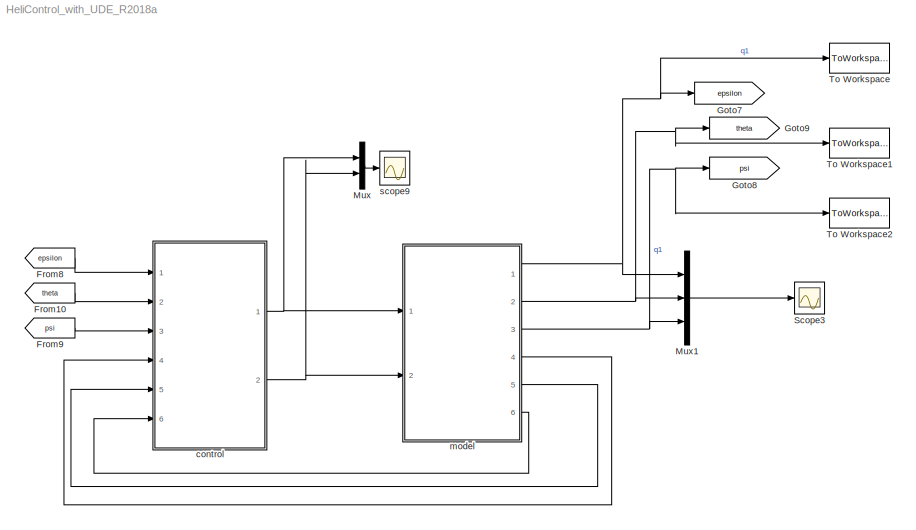
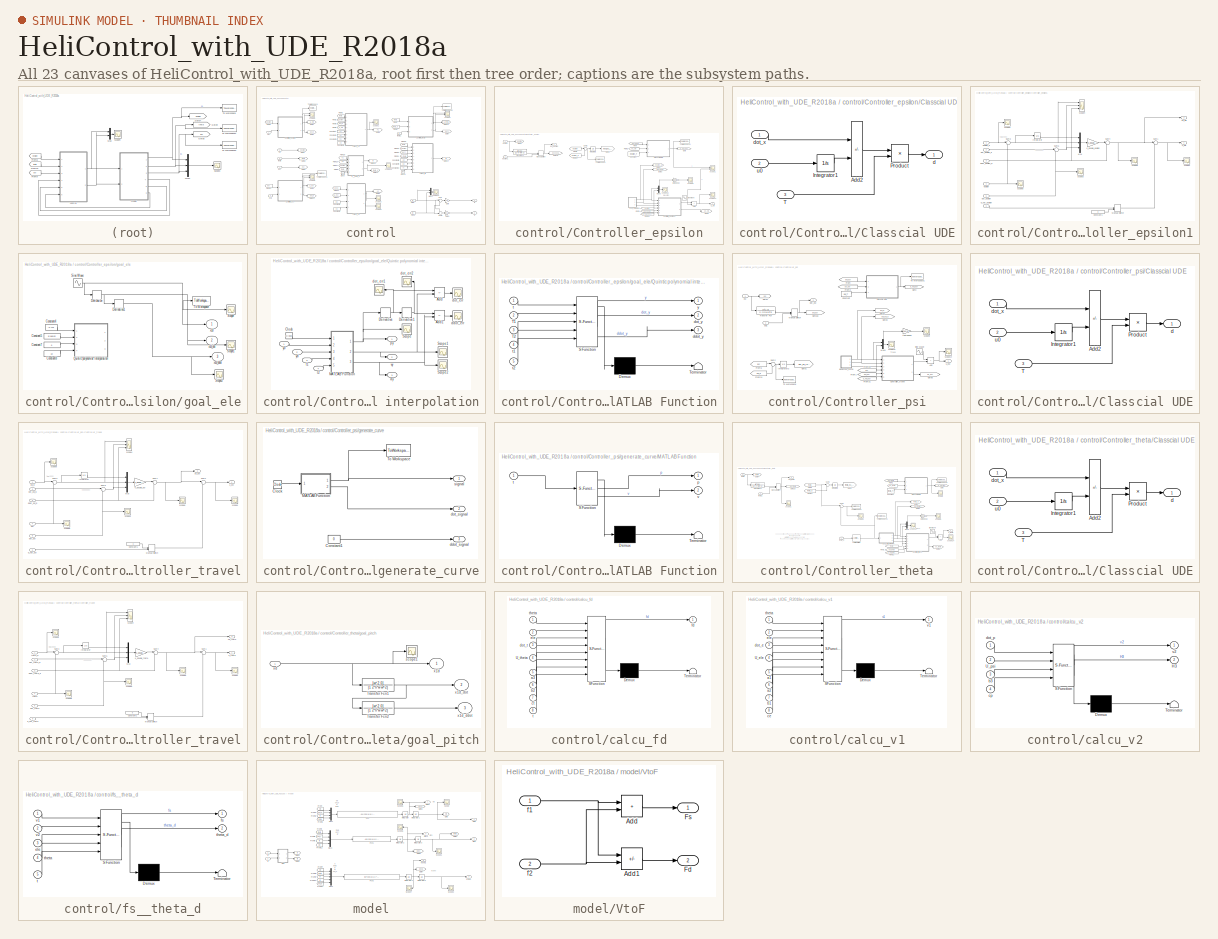
[diagram: thumbnail index - all 23 canvases of the model, root first then tree order]
MODEL HeliControl_with_UDE_R2018a
KIND model
CONFIG StopFcn = %save('data.mat','ans_eps','ans_eps_d','ans_psi','ans_psi_d','ans_theta','ans_theta_d','u_ele','u_psi','u_theta','dhat_ele','dhat_psi','dhat_theta')
BLOCK [From] From10
  GotoTag = theta
  SID = 1190
BLOCK [From] From8
  GotoTag = epsilon
  SID = 1191
BLOCK [From] From9
  GotoTag = psi
  SID = 1192
BLOCK [Goto] Goto7
  GotoTag = epsilon
  SID = 1193
BLOCK [Goto] Goto8
  GotoTag = psi
  SID = 1194
BLOCK [Goto] Goto9
  GotoTag = theta
  SID = 1195
BLOCK [Mux] Mux
  DisplayOption = bar
  Inputs = 2
  Ports = [2, 1]
  SID = 1196
BLOCK [Mux] Mux1
  DisplayOption = bar
  Inputs = 3
  Ports = [3, 1]
  SID = 1467
BLOCK [Scope] Scope3
  Floating = off
  NumInputPorts = 1
  Ports = [1]
  SID = 1200
  ScopeSpecificationString = Simulink.scopes.TimeScopeBlockCfg('CurrentConfiguration', extmgr.ConfigurationSet(extmgr.Configuration('Core','General UI',true),extmgr.Configuration('Core','Source UI',true),extmgr.Configuration('Sources','WiredSimulink',true,'DataLoggingVariableName','q','DataLoggingSaveFormat','Array','DataLoggingDecimation','1','DataLoggingDecimateData',true,'DataLogging',true),extmgr.Configuration('Visuals','...<+1801ch>
BLOCK [ToWorkspace] To Workspace
  FixptAsFi = on
  MaxDataPoints = inf
  Ports = [1]
  SID = 2101
  SampleTime = -1
  Save2DSignal = 2-D array (concatenate along first dimension)
  SaveFormat = Structure With Time
  VariableName = ans_eps
BLOCK [ToWorkspace] To Workspace1
  FixptAsFi = on
  MaxDataPoints = inf
  Ports = [1]
  SID = 2102
  SampleTime = -1
  Save2DSignal = 2-D array (concatenate along first dimension)
  VariableName = ans_theta
BLOCK [ToWorkspace] To Workspace2
  FixptAsFi = on
  MaxDataPoints = inf
  Ports = [1]
  SID = 2103
  SampleTime = -1
  Save2DSignal = 2-D array (concatenate along first dimension)
  VariableName = ans_psi
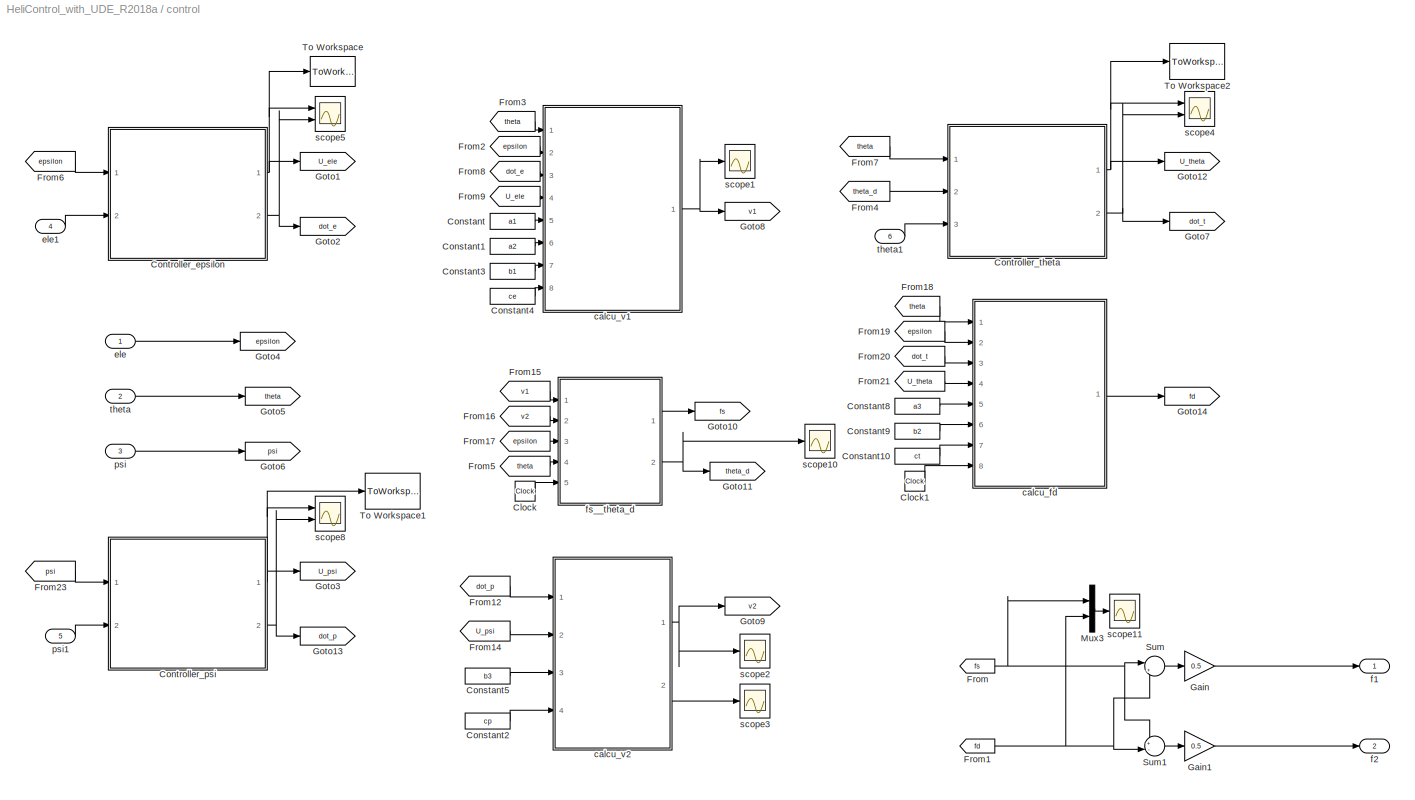
BLOCK [SubSystem] control
  Ports = [6, 2]
  RequestExecContextInheritance = off
  SID = 1204
BLOCK [Clock] control/Clock
  Decimation = 30
  SID = 1208
BLOCK [Clock] control/Clock1
  Decimation = 30
  SID = 1209
BLOCK [Constant] control/Constant
  SID = 1210
  Value = a1
BLOCK [Constant] control/Constant1
  SID = 1211
  Value = a2
BLOCK [Constant] control/Constant10
  SID = 1212
  Value = ct
BLOCK [Constant] control/Constant2
  SID = 2111
  Value = cp
BLOCK [Constant] control/Constant3
  SID = 1213
  Value = b1
BLOCK [Constant] control/Constant4
  SID = 1214
  Value = ce
BLOCK [Constant] control/Constant5
  SID = 1215
  Value = b3
BLOCK [Constant] control/Constant8
  SID = 1218
  Value = a3
BLOCK [Constant] control/Constant9
  SID = 1219
  Value = b2
BLOCK [SubSystem] control/Controller_epsilon
  Ports = [2, 2]
  RequestExecContextInheritance = off
  SID = 1571
BLOCK [Sum] control/Controller_epsilon/Add
  IconShape = rectangular
  Ports = [2, 1]
  SID = 2218
BLOCK [SubSystem] control/Controller_epsilon/Classcial UDE
  Ports = [3, 1]
  RequestExecContextInheritance = off
  SID = 2115
BLOCK [Sum] control/Controller_epsilon/Classcial UDE/Add2
  IconShape = rectangular
  Inputs = +-
  Ports = [2, 1]
  SID = 2119
BLOCK [Integrator] control/Controller_epsilon/Classcial UDE/Integrator1
  Ports = [1, 1]
  SID = 2121
BLOCK [Product] control/Controller_epsilon/Classcial UDE/Product
  Inputs = */
  Ports = [2, 1]
  SID = 2122
BLOCK [Inport] control/Controller_epsilon/Classcial UDE/T
  Port = 3
  SID = 2118
BLOCK [Outport] control/Controller_epsilon/Classcial UDE/d
  SID = 2123
  VectorParamsAs1DForOutWhenUnconnected = off
BLOCK [Inport] control/Controller_epsilon/Classcial UDE/dot_x
  SID = 2116
BLOCK [Inport] control/Controller_epsilon/Classcial UDE/u0
  Port = 2
  SID = 2117
BLOCK [Constant] control/Controller_epsilon/Constant
  SID = 2136
  SampleTime = -1
  Value = epsilon_T
  VectorParams1D = off
BLOCK [SubSystem] control/Controller_epsilon/Controller_epsilon1
  Ports = [6, 2]
  RequestExecContextInheritance = off
  SID = 1220
BLOCK [Constant] control/Controller_epsilon/Controller_epsilon1/Constant1
  SID = 2052
  Value = 0
BLOCK [Integrator] control/Controller_epsilon/Controller_epsilon1/Integrator
  Ports = [1, 1]
  SID = 1497
BLOCK [ManualSwitch] control/Controller_epsilon/Controller_epsilon1/Manual Switch
  SID = 2051
BLOCK [Mux] control/Controller_epsilon/Controller_epsilon1/Mux
  DisplayOption = bar
  Inputs = 3
  Ports = [3, 1]
  SID = 1227
BLOCK [Sum] control/Controller_epsilon/Controller_epsilon1/Sum1
  Inputs = |+-
  Ports = [2, 1]
  SID = 1580
BLOCK [Sum] control/Controller_epsilon/Controller_epsilon1/Sum3
  Inputs = |+-
  Ports = [2, 1]
  SID = 1228
BLOCK [Sum] control/Controller_epsilon/Controller_epsilon1/Sum4
  Inputs = |++
  Ports = [2, 1]
  SID = 1229
BLOCK [Sum] control/Controller_epsilon/Controller_epsilon1/Sum6
  Inputs = |+-
  Ports = [2, 1]
  SID = 1230
BLOCK [Inport] control/Controller_epsilon/Controller_epsilon1/d_hat_epsilon
  Port = 6
  SID = 1569
BLOCK [Inport] control/Controller_epsilon/Controller_epsilon1/ddot_epsilon_d
  Port = 3
  SID = 1223
BLOCK [Inport] control/Controller_epsilon/Controller_epsilon1/dot_epsilon
  Port = 5
  SID = 1579
BLOCK [Inport] control/Controller_epsilon/Controller_epsilon1/dot_epsilon_d
  Port = 2
  SID = 1222
BLOCK [Inport] control/Controller_epsilon/Controller_epsilon1/epsilon
  Port = 4
  SID = 1224
BLOCK [Inport] control/Controller_epsilon/Controller_epsilon1/epsilon_d
  SID = 1221
BLOCK [Gain] control/Controller_epsilon/Controller_epsilon1/k_double_epsilon
  Gain = k_double_epsilon
  Multiplication = Matrix(K*u)
  SID = 1232
BLOCK [Scope] control/Controller_epsilon/Controller_epsilon1/scope1
  Floating = off
  NumInputPorts = 1
  Ports = [1]
  SID = 1581
  ScopeSpecificationString = Simulink.scopes.TimeScopeBlockCfg('CurrentConfiguration', extmgr.ConfigurationSet(extmgr.Configuration('Core','General UI',true,'FigureColor',[1 1 1]),extmgr.Configuration('Core','Source UI',true),extmgr.Configuration('Sources','WiredSimulink',true,'DataLoggingVariableName','non2','DataLoggingSaveFormat','StructureWithTime','DataLoggingDecimation','1','DataLoggingDecimateData',true),extmgr.Configu...<+2930ch>
BLOCK [Scope] control/Controller_epsilon/Controller_epsilon1/scope3
  Floating = off
  NumInputPorts = 1
  Ports = [1]
  SID = 1233
  ScopeSpecificationString = Simulink.scopes.TimeScopeBlockCfg('CurrentConfiguration', extmgr.ConfigurationSet(extmgr.Configuration('Core','General UI',true),extmgr.Configuration('Core','Source UI',true),extmgr.Configuration('Sources','WiredSimulink',true,'DataLoggingVariableName','ScopeData4','DataLoggingSaveFormat','StructureWithTime','DataLoggingDecimation','1','DataLoggingDecimateData',true),extmgr.Configuration('Visuals'...<+1603ch>
BLOCK [Scope] control/Controller_epsilon/Controller_epsilon1/scope4
  Floating = off
  NumInputPorts = 3
  Ports = [3]
  SID = 1234
  ScopeSpecificationString = Simulink.scopes.TimeScopeBlockCfg('CurrentConfiguration', extmgr.ConfigurationSet(extmgr.Configuration('Core','General UI',true),extmgr.Configuration('Core','Source UI',true),extmgr.Configuration('Sources','WiredSimulink',true,'DataLoggingVariableName','ScopeData5','DataLoggingSaveFormat','StructureWithTime','DataLoggingDecimation','1','DataLoggingDecimateData',true),extmgr.Configuration('Visuals'...<+3022ch>
BLOCK [Scope] control/Controller_epsilon/Controller_epsilon1/scope6
  Floating = off
  NumInputPorts = 1
  Ports = [1]
  SID = 1235
  ScopeSpecificationString = Simulink.scopes.TimeScopeBlockCfg('CurrentConfiguration', extmgr.ConfigurationSet(extmgr.Configuration('Core','General UI',true,'FigureColor',[1 1 1]),extmgr.Configuration('Core','Source UI',true),extmgr.Configuration('Sources','WiredSimulink',true,'DataLoggingVariableName','non','DataLoggingSaveFormat','StructureWithTime','DataLoggingDecimation','1','DataLoggingDecimateData',true),extmgr.Configur...<+2562ch>  <repeated x3 — deduplicated; at blocks: scope6>
BLOCK [Scope] control/Controller_epsilon/Controller_epsilon1/scope8
  Floating = off
  NumInputPorts = 1
  Ports = [1]
  SID = 1236
  ScopeSpecificationString = Simulink.scopes.TimeScopeBlockCfg('CurrentConfiguration', extmgr.ConfigurationSet(extmgr.Configuration('Core','General UI',true),extmgr.Configuration('Core','Source UI',true),extmgr.Configuration('Sources','WiredSimulink',true,'DataLoggingVariableName','ScopeData6','DataLoggingSaveFormat','StructureWithTime','DataLoggingDecimation','1','DataLoggingDecimateData',true),extmgr.Configuration('Visuals'...<+894ch>  <repeated x3 — deduplicated; at blocks: scope8>
BLOCK [Scope] control/Controller_epsilon/Controller_epsilon1/scope9
  Floating = off
  NumInputPorts = 1
  Ports = [1]
  SID = 1237
  ScopeSpecificationString = Simulink.scopes.TimeScopeBlockCfg('CurrentConfiguration', extmgr.ConfigurationSet(extmgr.Configuration('Core','General UI',true),extmgr.Configuration('Core','Source UI',true),extmgr.Configuration('Sources','WiredSimulink',true,'DataLoggingVariableName','ScopeData7','DataLoggingSaveFormat','StructureWithTime','DataLoggingDecimation','1','DataLoggingDecimateData',true),extmgr.Configuration('Visuals'...<+1602ch>
BLOCK [Outport] control/Controller_epsilon/Controller_epsilon1/u0_ele
  Port = 2
  SID = 2113
  VectorParamsAs1DForOutWhenUnconnected = off
BLOCK [Outport] control/Controller_epsilon/Controller_epsilon1/u_ele
  SID = 1238
  VectorParamsAs1DForOutWhenUnconnected = off
BLOCK [From] control/Controller_epsilon/From
  GotoTag = dot_epsilon
  SID = 2134
BLOCK [From] control/Controller_epsilon/From1
  GotoTag = dot_epsilon
  SID = 1582
BLOCK [From] control/Controller_epsilon/From2
  GotoTag = u0_ele
  SID = 2135
BLOCK [From] control/Controller_epsilon/From23
  GotoTag = epsilon
  SID = 1298
BLOCK [From] control/Controller_epsilon/From24
  GotoTag = epsilon_d
  SID = 1536
BLOCK [From] control/Controller_epsilon/From31
  GotoTag = d_hat_epsilon
  SID = 1570
BLOCK [From] control/Controller_epsilon/From6
  GotoTag = epsilon
  SID = 1535
BLOCK [Goto] control/Controller_epsilon/Goto
  GotoTag = d_hat_epsilon
  SID = 2133
BLOCK [Goto] control/Controller_epsilon/Goto1
  GotoTag = epsil_e1_integral
  SID = 1537
BLOCK [Goto] control/Controller_epsilon/Goto18
  GotoTag = dot_epsilon
  SID = 1317
BLOCK [Goto] control/Controller_epsilon/Goto2
  GotoTag = epsilon_d
  SID = 1541
BLOCK [Goto] control/Controller_epsilon/Goto3
  GotoTag = dot_epsilon_d
  SID = 1542
BLOCK [Goto] control/Controller_epsilon/Goto4
  GotoTag = epsilon
  SID = 1573
BLOCK [Goto] control/Controller_epsilon/Goto5
  GotoTag = u0_ele
  SID = 2114
BLOCK [Integrator] control/Controller_epsilon/Integrator3
  Ports = [1, 1]
  SID = 1538
BLOCK [ManualSwitch] control/Controller_epsilon/Manual Switch
  CurrentSetting = 0
  SID = 1600
BLOCK [Mux] control/Controller_epsilon/Mux5
  DisplayOption = bar
  Inputs = 2
  Ports = [2, 1]
  SID = 1329
BLOCK [Sin] control/Controller_epsilon/Sine Wave
  Amplitude = 0.05
  Bias = 0.1
  Frequency = 0.5
  Ports = [0, 1]
  SID = 2219
  SampleTime = 0
BLOCK [Sum] control/Controller_epsilon/Sum2
  Inputs = |+-
  Ports = [2, 1]
  SID = 1540
BLOCK [ToWorkspace] control/Controller_epsilon/To Workspace
  FixptAsFi = on
  MaxDataPoints = inf
  Ports = [1]
  SID = 2104
  SampleTime = -1
  SaveFormat = Timeseries
  VariableName = delta_ans_eps
BLOCK [ToWorkspace] control/Controller_epsilon/To Workspace1
  FixptAsFi = on
  MaxDataPoints = inf
  Ports = [1]
  SID = 2213
  SampleTime = -1
  Save2DSignal = 2-D array (concatenate along first dimension)
  VariableName = dhat_ele
BLOCK [TransferFcn] control/Controller_epsilon/Transfer Fcn
  Denominator = [1 2*n*w w^2]
  Numerator = [w^2 0]
  SID = 1583
BLOCK [Outport] control/Controller_epsilon/U_ele
  SID = 1574
  VectorParamsAs1DForOutWhenUnconnected = off
BLOCK [Outport] control/Controller_epsilon/dot_epsilon
  Port = 2
  SID = 1575
  VectorParamsAs1DForOutWhenUnconnected = off
BLOCK [Inport] control/Controller_epsilon/epsilon
  SID = 1572
BLOCK [Inport] control/Controller_epsilon/epsilon1
  Port = 2
  SID = 2036
BLOCK [SubSystem] control/Controller_epsilon/goal_ele
  Ports = [0, 3]
  RequestExecContextInheritance = off
  SID = 1358
BLOCK [Constant] control/Controller_epsilon/goal_ele/Constant4
  SID = 2195
  SampleTime = -1
  Value = -0.713
  VectorParams1D = off
BLOCK [Constant] control/Controller_epsilon/goal_ele/Constant5
  SID = 2196
  SampleTime = -1
  Value = 5/180*pi
  VectorParams1D = off
BLOCK [Constant] control/Controller_epsilon/goal_ele/Constant7
  SID = 2197
  SampleTime = -1
  Value = 0
  VectorParams1D = off
BLOCK [Constant] control/Controller_epsilon/goal_ele/Constant8
  SID = 2198
  SampleTime = -1
  Value = 10
  VectorParams1D = off
BLOCK [Derivative] control/Controller_epsilon/goal_ele/Derivative
  SID = 2246
BLOCK [Derivative] control/Controller_epsilon/goal_ele/Derivative1
  SID = 2247
BLOCK [SubSystem] control/Controller_epsilon/goal_ele/Quintic polynomial interpolation
  Ports = [4, 3]
  RequestExecContextInheritance = off
  SID = 2174
BLOCK [Sum] control/Controller_epsilon/goal_ele/Quintic polynomial interpolation/Add
  IconShape = rectangular
  Inputs = +-
  Ports = [2, 1]
  SID = 2179
BLOCK [Sum] control/Controller_epsilon/goal_ele/Quintic polynomial interpolation/Add1
  IconShape = rectangular
  Inputs = +-
  Ports = [2, 1]
  SID = 2180
BLOCK [Clock] control/Controller_epsilon/goal_ele/Quintic polynomial interpolation/Clock
  SID = 2181
BLOCK [Derivative] control/Controller_epsilon/goal_ele/Quintic polynomial interpolation/Derivative
  SID = 2182
BLOCK [Derivative] control/Controller_epsilon/goal_ele/Quintic polynomial interpolation/Derivative1
  SID = 2183
BLOCK [SubSystem] control/Controller_epsilon/goal_ele/Quintic polynomial interpolation/MATLAB Function
  ErrorFcn = Stateflow.Translate.translate
  PermitHierarchicalResolution = ExplicitOnly
  Ports = [5, 3]
  RequestExecContextInheritance = off
  SFBlockType = MATLAB Function
  SID = 2184
  TreatAsAtomicUnit = on
BLOCK [Demux] control/Controller_epsilon/goal_ele/Quintic polynomial interpolation/MATLAB Function/ Demux 
  Outputs = 1
  Ports = [1, 1]
  SID = 2184::30
BLOCK [S-Function] control/Controller_epsilon/goal_ele/Quintic polynomial interpolation/MATLAB Function/ SFunction 
  EnableBusSupport = on
  FunctionName = sf_sfun
  PortCounts = [5 4]
  Ports = [5, 4]
  SFcnIsStateOwnerBlock = off
  SFunctionDeploymentMode = off
  SID = 2184::29
  Tag = Stateflow S-Function HeliControl_with_UDE_R2018a 10
BLOCK [Terminator] control/Controller_epsilon/goal_ele/Quintic polynomial interpolation/MATLAB Function/ Terminator 
  SID = 2184::31
BLOCK [Inport] control/Controller_epsilon/goal_ele/Quintic polynomial interpolation/MATLAB Function/T1
  Port = 2
  SID = 2184::25
BLOCK [Inport] control/Controller_epsilon/goal_ele/Quintic polynomial interpolation/MATLAB Function/T2
  Port = 3
  SID = 2184::26
BLOCK [Outport] control/Controller_epsilon/goal_ele/Quintic polynomial interpolation/MATLAB Function/ddot_y
  Port = 3
  SID = 2184::33
BLOCK [Outport] control/Controller_epsilon/goal_ele/Quintic polynomial interpolation/MATLAB Function/dot_y
  Port = 2
  SID = 2184::32
BLOCK [Inport] control/Controller_epsilon/goal_ele/Quintic polynomial interpolation/MATLAB Function/t
  SID = 2184::1
BLOCK [Inport] control/Controller_epsilon/goal_ele/Quintic polynomial interpolation/MATLAB Function/t1
  Port = 4
  SID = 2184::27
BLOCK [Inport] control/Controller_epsilon/goal_ele/Quintic polynomial interpolation/MATLAB Function/t2
  Port = 5
  SID = 2184::28
BLOCK [Outport] control/Controller_epsilon/goal_ele/Quintic polynomial interpolation/MATLAB Function/y
  SID = 2184::5
  VectorParamsAs1DForOutWhenUnconnected = off
BLOCK [Scope] control/Controller_epsilon/goal_ele/Quintic polynomial interpolation/Scope
  Floating = off
  NumInputPorts = 1
  Ports = [1]
  SID = 2185
  ScopeSpecificationString = Simulink.scopes.TimeScopeBlockCfg('CurrentConfiguration', extmgr.ConfigurationSet(extmgr.Configuration('Core','General UI',true),extmgr.Configuration('Core','Source UI',true),extmgr.Configuration('Sources','WiredSimulink',true,'DataLoggingVariableName','ScopeData2'),extmgr.Configuration('Visuals','Time Domain',true,'SerializedDisplays',{struct('MinYLimReal','0.5','MaxYLimReal','5.5','YLabelReal','...<+1420ch>
BLOCK [Scope] control/Controller_epsilon/goal_ele/Quintic polynomial interpolation/Scope1
  Floating = off
  NumInputPorts = 1
  Ports = [1]
  SID = 2186
  ScopeSpecificationString = Simulink.scopes.TimeScopeBlockCfg('CurrentConfiguration', extmgr.ConfigurationSet(extmgr.Configuration('Core','General UI',true),extmgr.Configuration('Core','Source UI',true),extmgr.Configuration('Sources','WiredSimulink',true,'DataLoggingVariableName','ScopeData2'),extmgr.Configuration('Visuals','Time Domain',true,'SerializedDisplays',{struct('MinYLimReal','-0.15625','MaxYLimReal','1.40625','YLab...<+1457ch>
BLOCK [Scope] control/Controller_epsilon/goal_ele/Quintic polynomial interpolation/Scope2
  Floating = off
  NumInputPorts = 1
  Ports = [1]
  SID = 2187
  ScopeSpecificationString = Simulink.scopes.TimeScopeBlockCfg('CurrentConfiguration', extmgr.ConfigurationSet(extmgr.Configuration('Core','General UI',true),extmgr.Configuration('Core','Source UI',true),extmgr.Configuration('Sources','WiredSimulink',true,'DataLoggingVariableName','ScopeData3'),extmgr.Configuration('Visuals','Time Domain',true,'SerializedDisplays',{struct('MinYLimReal','-0.80187','MaxYLimReal','0.80187','YLab...<+1459ch>
BLOCK [Outport] control/Controller_epsilon/goal_ele/Quintic polynomial interpolation/ay
  Port = 3
  SID = 2194
  VectorParamsAs1DForOutWhenUnconnected = off
BLOCK [Scope] control/Controller_epsilon/goal_ele/Quintic polynomial interpolation/ddot_err
  Floating = off
  NumInputPorts = 1
  Ports = [1]
  SID = 2188
  ScopeSpecificationString = Simulink.scopes.TimeScopeBlockCfg('CurrentConfiguration', extmgr.ConfigurationSet(extmgr.Configuration('Core','General UI',true),extmgr.Configuration('Core','Source UI',true),extmgr.Configuration('Sources','WiredSimulink',true,'DataLoggingVariableName','ScopeData5'),extmgr.Configuration('Visuals','Time Domain',true,'SerializedDisplays',{struct('MinYLimReal','-0.00658','MaxYLimReal','0.00382','YLab...<+1441ch>
BLOCK [Scope] control/Controller_epsilon/goal_ele/Quintic polynomial interpolation/dot_err
  Floating = off
  NumInputPorts = 1
  Ports = [1]
  SID = 2189
  ScopeSpecificationString = Simulink.scopes.TimeScopeBlockCfg('CurrentConfiguration', extmgr.ConfigurationSet(extmgr.Configuration('Core','General UI',true),extmgr.Configuration('Core','Source UI',true),extmgr.Configuration('Sources','WiredSimulink',true,'DataLoggingVariableName','ScopeData4'),extmgr.Configuration('Visuals','Time Domain',true,'SerializedDisplays',{struct('MinYLimReal','-0.002','MaxYLimReal','0.002','YLabelRe...<+1428ch>
BLOCK [Scope] control/Controller_epsilon/goal_ele/Quintic polynomial interpolation/dot_err1
  Floating = off
  NumInputPorts = 1
  Ports = [1]
  SID = 2190
  ScopeSpecificationString = Simulink.scopes.TimeScopeBlockCfg('CurrentConfiguration', extmgr.ConfigurationSet(extmgr.Configuration('Core','General UI',true),extmgr.Configuration('Core','Source UI',true),extmgr.Configuration('Sources','WiredSimulink',true,'DataLoggingVariableName','ScopeData6'),extmgr.Configuration('Visuals','Time Domain',true,'SerializedDisplays',{struct('MinYLimReal','-0.1309','MaxYLimReal','1.1781','YLabel...<+1438ch>
BLOCK [Scope] control/Controller_epsilon/goal_ele/Quintic polynomial interpolation/dot_err2
  Floating = off
  NumInputPorts = 1
  Ports = [1]
  SID = 2191
  ScopeSpecificationString = Simulink.scopes.TimeScopeBlockCfg('CurrentConfiguration', extmgr.ConfigurationSet(extmgr.Configuration('Core','General UI',true),extmgr.Configuration('Core','Source UI',true),extmgr.Configuration('Sources','WiredSimulink',true,'DataLoggingVariableName','ScopeData7'),extmgr.Configuration('Visuals','Time Domain',true,'SerializedDisplays',{struct('MinYLimReal','-0.68539','MaxYLimReal','0.68539','YLab...<+1446ch>
BLOCK [Outport] control/Controller_epsilon/goal_ele/Quintic polynomial interpolation/py
  SID = 2192
  VectorParamsAs1DForOutWhenUnconnected = off
BLOCK [Inport] control/Controller_epsilon/goal_ele/Quintic polynomial interpolation/t1
  Port = 3
  SID = 2177
BLOCK [Inport] control/Controller_epsilon/goal_ele/Quintic polynomial interpolation/t2
  Port = 4
  SID = 2178
BLOCK [Outport] control/Controller_epsilon/goal_ele/Quintic polynomial interpolation/vy
  Port = 2
  SID = 2193
  VectorParamsAs1DForOutWhenUnconnected = off
BLOCK [Inport] control/Controller_epsilon/goal_ele/Quintic polynomial interpolation/y0
  SID = 2175
BLOCK [Inport] control/Controller_epsilon/goal_ele/Quintic polynomial interpolation/yd
  Port = 2
  SID = 2176
BLOCK [Scope] control/Controller_epsilon/goal_ele/Scope
  Floating = off
  NumInputPorts = 1
  Ports = [1]
  SID = 1494
  ScopeSpecificationString = Simulink.scopes.TimeScopeBlockCfg('CurrentConfiguration', extmgr.ConfigurationSet(extmgr.Configuration('Core','General UI',true),extmgr.Configuration('Core','Source UI',true),extmgr.Configuration('Sources','WiredSimulink',true,'DataLoggingVariableName','ScopeData3','DataLoggingSaveFormat','StructureWithTime','DataLoggingDecimation','1','DataLoggingDecimateData',true),extmgr.Configuration('Visuals'...<+1679ch>
BLOCK [Scope] control/Controller_epsilon/goal_ele/Scope1
  Floating = off
  NumInputPorts = 1
  Ports = [1]
  SID = 1495
  ScopeSpecificationString = Simulink.scopes.TimeScopeBlockCfg('CurrentConfiguration', extmgr.ConfigurationSet(extmgr.Configuration('Core','General UI',true),extmgr.Configuration('Core','Source UI',true),extmgr.Configuration('Sources','WiredSimulink',true,'DataLoggingVariableName','ScopeData8','DataLoggingSaveFormat','StructureWithTime','DataLoggingDecimation','1','DataLoggingDecimateData',true),extmgr.Configuration('Visuals'...<+877ch>
BLOCK [Scope] control/Controller_epsilon/goal_ele/Scope2
  Floating = off
  NumInputPorts = 1
  Ports = [1]
  SID = 1496
  ScopeSpecificationString = Simulink.scopes.TimeScopeBlockCfg('CurrentConfiguration', extmgr.ConfigurationSet(extmgr.Configuration('Core','General UI',true),extmgr.Configuration('Core','Source UI',true),extmgr.Configuration('Sources','WiredSimulink',true,'DataLoggingVariableName','ScopeData9','DataLoggingSaveFormat','StructureWithTime','DataLoggingDecimation','1','DataLoggingDecimateData',true),extmgr.Configuration('Visuals'...<+877ch>
BLOCK [Sin] control/Controller_epsilon/goal_ele/Sine Wave
  Amplitude = -2*pi/180
  Bias = 2*pi/180
  Frequency = 0.4*pi
  Phase = pi/2
  Ports = [0, 1]
  SID = 2245
  SampleTime = 0
BLOCK [ToWorkspace] control/Controller_epsilon/goal_ele/To Workspace
  FixptAsFi = on
  MaxDataPoints = inf
  Ports = [1]
  SID = 2098
  SampleTime = -1
  Save2DSignal = 2-D array (concatenate along first dimension)
  VariableName = ans_eps_d
BLOCK [Outport] control/Controller_epsilon/goal_ele/x1d
  SID = 1363
  VectorParamsAs1DForOutWhenUnconnected = off
BLOCK [Outport] control/Controller_epsilon/goal_ele/x1d_ddot
  Port = 3
  SID = 1365
  VectorParamsAs1DForOutWhenUnconnected = off
BLOCK [Outport] control/Controller_epsilon/goal_ele/x1d_dot
  Port = 2
  SID = 1364
  VectorParamsAs1DForOutWhenUnconnected = off
BLOCK [Gain] control/Controller_epsilon/radtodeg2
  Gain = 180/pi
  SID = 1501
BLOCK [Scope] control/Controller_epsilon/scope1
  Floating = off
  NumInputPorts = 2
  Ports = [2]
  SID = 2224
  ScopeSpecificationString = Simulink.scopes.TimeScopeBlockCfg('CurrentConfiguration', extmgr.ConfigurationSet(extmgr.Configuration('Core','General UI',true),extmgr.Configuration('Core','Source UI',true),extmgr.Configuration('Sources','WiredSimulink',true,'DataLoggingVariableName','ScopeData3','DataLoggingSaveFormat','StructureWithTime','DataLoggingDecimation','1','DataLoggingDecimateData',true),extmgr.Configuration('Visuals'...<+1696ch>
BLOCK [Scope] control/Controller_epsilon/scope12
  Floating = off
  NumInputPorts = 1
  Ports = [1]
  SID = 1375
  ScopeSpecificationString = Simulink.scopes.TimeScopeBlockCfg('CurrentConfiguration', extmgr.ConfigurationSet(extmgr.Configuration('Core','General UI',true),extmgr.Configuration('Core','Source UI',true),extmgr.Configuration('Sources','WiredSimulink',true,'DataLoggingVariableName','ScopeData14','DataLoggingSaveFormat','StructureWithTime','DataLoggingDecimation','1','DataLoggingDecimateData',true),extmgr.Configuration('Visuals...<+1677ch>
BLOCK [Scope] control/Controller_epsilon/scope14
  Floating = off
  NumInputPorts = 1
  Ports = [1]
  SID = 1377
  ScopeSpecificationString = Simulink.scopes.TimeScopeBlockCfg('CurrentConfiguration', extmgr.ConfigurationSet(extmgr.Configuration('Core','General UI',true),extmgr.Configuration('Core','Source UI',true),extmgr.Configuration('Sources','WiredSimulink',true,'DataLoggingVariableName','ScopeData37','DataLoggingSaveFormat','StructureWithTime','DataLoggingDecimation','1','DataLoggingDecimateData',true),extmgr.Configuration('Visuals...<+1686ch>
BLOCK [Scope] control/Controller_epsilon/scope9
  Floating = off
  NumInputPorts = 1
  Ports = [1]
  SID = 1502
  ScopeSpecificationString = Simulink.scopes.TimeScopeBlockCfg('CurrentConfiguration', extmgr.ConfigurationSet(extmgr.Configuration('Core','General UI',true),extmgr.Configuration('Core','Source UI',true),extmgr.Configuration('Sources','WiredSimulink',true,'DataLoggingVariableName','ScopeData12','DataLoggingSaveFormat','StructureWithTime','DataLoggingDecimation','1','DataLoggingDecimateData',true),extmgr.Configuration('Visuals...<+1728ch>
BLOCK [SubSystem] control/Controller_psi
  Ports = [2, 2]
  RequestExecContextInheritance = off
  SID = 1611
BLOCK [Sum] control/Controller_psi/Add
  IconShape = rectangular
  Ports = [2, 1]
  SID = 2222
BLOCK [SubSystem] control/Controller_psi/Classcial UDE
  Ports = [3, 1]
  RequestExecContextInheritance = off
  SID = 2225
BLOCK [Sum] control/Controller_psi/Classcial UDE/Add2
  IconShape = rectangular
  Inputs = +-
  Ports = [2, 1]
  SID = 2229
BLOCK [Integrator] control/Controller_psi/Classcial UDE/Integrator1
  Ports = [1, 1]
  SID = 2230
BLOCK [Product] control/Controller_psi/Classcial UDE/Product
  Inputs = */
  Ports = [2, 1]
  SID = 2231
BLOCK [Inport] control/Controller_psi/Classcial UDE/T
  Port = 3
  SID = 2228
BLOCK [Outport] control/Controller_psi/Classcial UDE/d
  SID = 2232
  VectorParamsAs1DForOutWhenUnconnected = off
BLOCK [Inport] control/Controller_psi/Classcial UDE/dot_x
  SID = 2226
BLOCK [Inport] control/Controller_psi/Classcial UDE/u0
  Port = 2
  SID = 2227
BLOCK [Constant] control/Controller_psi/Constant
  SID = 2146
  SampleTime = -1
  Value = psi_T
  VectorParams1D = off
BLOCK [SubSystem] control/Controller_psi/Controller_travel
  Ports = [6, 2]
  RequestExecContextInheritance = off
  SID = 1620
BLOCK [Constant] control/Controller_psi/Controller_travel/Constant1
  SID = 2053
  Value = 0
BLOCK [Integrator] control/Controller_psi/Controller_travel/Integrator
  Ports = [1, 1]
  SID = 1627
BLOCK [ManualSwitch] control/Controller_psi/Controller_travel/Manual Switch
  CurrentSetting = 0
  SID = 2054
BLOCK [Mux] control/Controller_psi/Controller_travel/Mux
  DisplayOption = bar
  Inputs = 3
  Ports = [3, 1]
  SID = 1628
BLOCK [Sum] control/Controller_psi/Controller_travel/Sum1
  Inputs = |+-
  Ports = [2, 1]
  SID = 1629
BLOCK [Sum] control/Controller_psi/Controller_travel/Sum3
  Inputs = |+-
  Ports = [2, 1]
  SID = 1630
BLOCK [Sum] control/Controller_psi/Controller_travel/Sum4
  Inputs = |++
  Ports = [2, 1]
  SID = 1631
BLOCK [Sum] control/Controller_psi/Controller_travel/Sum6
  Inputs = |+-
  Ports = [2, 1]
  SID = 1632
BLOCK [Inport] control/Controller_psi/Controller_travel/d_hat_psi
  Port = 6
  SID = 1626
BLOCK [Inport] control/Controller_psi/Controller_travel/ddot_psi_d
  Port = 3
  SID = 1623
BLOCK [Inport] control/Controller_psi/Controller_travel/dot_psi
  Port = 5
  SID = 1625
BLOCK [Inport] control/Controller_psi/Controller_travel/dot_psi_d
  Port = 2
  SID = 1622
BLOCK [Gain] control/Controller_psi/Controller_travel/k_double_psi
  Gain = k_double_psi
  Multiplication = Matrix(K*u)
  SID = 1633
BLOCK [Inport] control/Controller_psi/Controller_travel/psi
  Port = 4
  SID = 1624
BLOCK [Inport] control/Controller_psi/Controller_travel/psi_d
  SID = 1621
BLOCK [Scope] control/Controller_psi/Controller_travel/scope1
  Floating = off
  NumInputPorts = 1
  Ports = [1]
  SID = 1634
  ScopeSpecificationString = Simulink.scopes.TimeScopeBlockCfg('CurrentConfiguration', extmgr.ConfigurationSet(extmgr.Configuration('Core','General UI',true,'FigureColor',[1 1 1]),extmgr.Configuration('Core','Source UI',true),extmgr.Configuration('Sources','WiredSimulink',true,'DataLoggingVariableName','non2','DataLoggingSaveFormat','StructureWithTime','DataLoggingDecimation','1','DataLoggingDecimateData',true),extmgr.Configu...<+2563ch>
BLOCK [Scope] control/Controller_psi/Controller_travel/scope3
  Floating = off
  NumInputPorts = 1
  Ports = [1]
  SID = 1635
  ScopeSpecificationString = Simulink.scopes.TimeScopeBlockCfg('CurrentConfiguration', extmgr.ConfigurationSet(extmgr.Configuration('Core','General UI',true),extmgr.Configuration('Core','Source UI',true),extmgr.Configuration('Sources','WiredSimulink',true,'DataLoggingVariableName','ScopeData4','DataLoggingSaveFormat','StructureWithTime','DataLoggingDecimation','1','DataLoggingDecimateData',true),extmgr.Configuration('Visuals'...<+1603ch>
BLOCK [Scope] control/Controller_psi/Controller_travel/scope4
  Floating = off
  NumInputPorts = 3
  Ports = [3]
  SID = 1636
  ScopeSpecificationString = Simulink.scopes.TimeScopeBlockCfg('CurrentConfiguration', extmgr.ConfigurationSet(extmgr.Configuration('Core','General UI',true),extmgr.Configuration('Core','Source UI',true),extmgr.Configuration('Sources','WiredSimulink',true,'DataLoggingVariableName','ScopeData5','DataLoggingSaveFormat','StructureWithTime','DataLoggingDecimation','1','DataLoggingDecimateData',true),extmgr.Configuration('Visuals'...<+2992ch>
BLOCK [Scope] control/Controller_psi/Controller_travel/scope6
  Floating = off
  NumInputPorts = 1
  Ports = [1]
  SID = 1637
BLOCK [Scope] control/Controller_psi/Controller_travel/scope8
  Floating = off
  NumInputPorts = 1
  Ports = [1]
  SID = 1638
BLOCK [Scope] control/Controller_psi/Controller_travel/scope9
  Floating = off
  NumInputPorts = 1
  Ports = [1]
  SID = 1639
  ScopeSpecificationString = Simulink.scopes.TimeScopeBlockCfg('CurrentConfiguration', extmgr.ConfigurationSet(extmgr.Configuration('Core','General UI',true),extmgr.Configuration('Core','Source UI',true),extmgr.Configuration('Sources','WiredSimulink',true,'DataLoggingVariableName','ScopeData7','DataLoggingSaveFormat','StructureWithTime','DataLoggingDecimation','1','DataLoggingDecimateData',true),extmgr.Configuration('Visuals'...<+1602ch>
BLOCK [Outport] control/Controller_psi/Controller_travel/u0_psi
  Port = 2
  SID = 2151
  VectorParamsAs1DForOutWhenUnconnected = off
BLOCK [Outport] control/Controller_psi/Controller_travel/u_psi
  SID = 1640
  VectorParamsAs1DForOutWhenUnconnected = off
BLOCK [From] control/Controller_psi/From
  GotoTag = dot_psi
  SID = 2150
BLOCK [From] control/Controller_psi/From1
  GotoTag = dot_psi
  SID = 1644
BLOCK [From] control/Controller_psi/From2
  GotoTag = u0_psi
  SID = 2153
BLOCK [From] control/Controller_psi/From23
  GotoTag = psi
  SID = 1648
BLOCK [From] control/Controller_psi/From24
  GotoTag = psi_d
  SID = 1649
BLOCK [From] control/Controller_psi/From31
  GotoTag = d_hat_psi
  SID = 1657
BLOCK [From] control/Controller_psi/From6
  GotoTag = psi
  SID = 1660
BLOCK [Goto] control/Controller_psi/Goto
  GotoTag = d_hat_psi
  SID = 2170
BLOCK [Goto] control/Controller_psi/Goto1
  GotoTag = psi_e1_integral
  SID = 1665
BLOCK [Goto] control/Controller_psi/Goto18
  GotoTag = dot_psi
  SID = 1669
BLOCK [Goto] control/Controller_psi/Goto2
  GotoTag = psi_d
  SID = 1671
BLOCK [Goto] control/Controller_psi/Goto3
  GotoTag = dot_psi_d
  SID = 1673
BLOCK [Goto] control/Controller_psi/Goto4
  GotoTag = psi
  SID = 1674
BLOCK [Goto] control/Controller_psi/Goto5
  GotoTag = u0_psi
  SID = 2152
BLOCK [Integrator] control/Controller_psi/Integrator3
  Ports = [1, 1]
  SID = 1680
BLOCK [ManualSwitch] control/Controller_psi/Manual Switch
  CurrentSetting = 0
  SID = 1682
BLOCK [Mux] control/Controller_psi/Mux5
  DisplayOption = bar
  Inputs = 2
  Ports = [2, 1]
  SID = 1683
BLOCK [Sin] control/Controller_psi/Sine Wave
  Amplitude = 0.05
  Bias = 0.1
  Frequency = 2
  Ports = [0, 1]
  SID = 2223
  SampleTime = 0
BLOCK [Sum] control/Controller_psi/Sum2
  Inputs = |+-
  Ports = [2, 1]
  SID = 1685
BLOCK [ToWorkspace] control/Controller_psi/To Workspace
  FixptAsFi = on
  MaxDataPoints = inf
  Ports = [1]
  SID = 2105
  SampleTime = -1
  SaveFormat = Timeseries
  VariableName = delta_ans_psi
BLOCK [ToWorkspace] control/Controller_psi/To Workspace1
  FixptAsFi = on
  MaxDataPoints = inf
  Ports = [1]
  SID = 2214
  SampleTime = -1
  Save2DSignal = 2-D array (concatenate along first dimension)
  VariableName = dhat_psi
BLOCK [TransferFcn] control/Controller_psi/Transfer Fcn
  Denominator = [1 2*n*w w^2]
  Numerator = [w^2 0]
  SID = 1686
BLOCK [Outport] control/Controller_psi/U_psi
  SID = 1724
  VectorParamsAs1DForOutWhenUnconnected = off
BLOCK [Outport] control/Controller_psi/dot_psi
  Port = 2
  SID = 1725
  VectorParamsAs1DForOutWhenUnconnected = off
BLOCK [SubSystem] control/Controller_psi/generate_curve
  Ports = [0, 3]
  RequestExecContextInheritance = off
  SID = 1727
BLOCK [Clock] control/Controller_psi/generate_curve/Clock
  SID = 2207
BLOCK [Constant] control/Controller_psi/generate_curve/Constant1
  SID = 2208
  SampleTime = -1
  Value = 0
  VectorParams1D = off
BLOCK [SubSystem] control/Controller_psi/generate_curve/MATLAB Function
  ErrorFcn = Stateflow.Translate.translate
  PermitHierarchicalResolution = ExplicitOnly
  Ports = [1, 2]
  RequestExecContextInheritance = off
  SFBlockType = MATLAB Function
  SID = 2209
  TreatAsAtomicUnit = on
BLOCK [Demux] control/Controller_psi/generate_curve/MATLAB Function/ Demux 
  Outputs = 1
  Ports = [1, 1]
  SID = 2209::23
BLOCK [S-Function] control/Controller_psi/generate_curve/MATLAB Function/ SFunction 
  EnableBusSupport = on
  FunctionName = sf_sfun
  PortCounts = [1 3]
  Ports = [1, 3]
  SFcnIsStateOwnerBlock = off
  SFunctionDeploymentMode = off
  SID = 2209::22
  Tag = Stateflow S-Function HeliControl_with_UDE_R2018a 2
BLOCK [Terminator] control/Controller_psi/generate_curve/MATLAB Function/ Terminator 
  SID = 2209::24
BLOCK [Outport] control/Controller_psi/generate_curve/MATLAB Function/p
  SID = 2209::5
BLOCK [Inport] control/Controller_psi/generate_curve/MATLAB Function/t
  SID = 2209::1
BLOCK [Outport] control/Controller_psi/generate_curve/MATLAB Function/v
  Port = 2
  SID = 2209::25
BLOCK [ToWorkspace] control/Controller_psi/generate_curve/To Workspace
  FixptAsFi = on
  MaxDataPoints = inf
  Ports = [1]
  SID = 2099
  SampleTime = -1
  Save2DSignal = 2-D array (concatenate along first dimension)
  VariableName = ans_psi_d
BLOCK [Outport] control/Controller_psi/generate_curve/ddot_signal
  Port = 3
  SID = 1754
  VectorParamsAs1DForOutWhenUnconnected = off
BLOCK [Outport] control/Controller_psi/generate_curve/dot_signal
  Port = 2
  SID = 1753
  VectorParamsAs1DForOutWhenUnconnected = off
BLOCK [Outport] control/Controller_psi/generate_curve/signal
  SID = 1752
  VectorParamsAs1DForOutWhenUnconnected = off
BLOCK [Inport] control/Controller_psi/psi
  SID = 1612
BLOCK [Inport] control/Controller_psi/psi1
  Port = 2
  SID = 2038
BLOCK [Gain] control/Controller_psi/radtodeg2
  Gain = 180/pi
  SID = 1720
BLOCK [Scope] control/Controller_psi/scope12
  Floating = off
  NumInputPorts = 1
  Ports = [1]
  SID = 1721
  ScopeSpecificationString = Simulink.scopes.TimeScopeBlockCfg('CurrentConfiguration', extmgr.ConfigurationSet(extmgr.Configuration('Core','General UI',true),extmgr.Configuration('Core','Source UI',true),extmgr.Configuration('Sources','WiredSimulink',true,'DataLoggingVariableName','ScopeData14','DataLoggingSaveFormat','StructureWithTime','DataLoggingDecimation','1','DataLoggingDecimateData',true),extmgr.Configuration('Visuals...<+1712ch>
BLOCK [Scope] control/Controller_psi/scope14
  Floating = off
  NumInputPorts = 1
  Ports = [1]
  SID = 1722
  ScopeSpecificationString = Simulink.scopes.TimeScopeBlockCfg('CurrentConfiguration', extmgr.ConfigurationSet(extmgr.Configuration('Core','General UI',true),extmgr.Configuration('Core','Source UI',true),extmgr.Configuration('Sources','WiredSimulink',true,'DataLoggingVariableName','ScopeData37','DataLoggingSaveFormat','StructureWithTime','DataLoggingDecimation','1','DataLoggingDecimateData',true),extmgr.Configuration('Visuals...<+1603ch>
BLOCK [Scope] control/Controller_psi/scope9
  Floating = off
  NumInputPorts = 1
  Ports = [1]
  SID = 1723
  ScopeSpecificationString = Simulink.scopes.TimeScopeBlockCfg('CurrentConfiguration', extmgr.ConfigurationSet(extmgr.Configuration('Core','General UI',true),extmgr.Configuration('Core','Source UI',true),extmgr.Configuration('Sources','WiredSimulink',true,'DataLoggingVariableName','ScopeData12','DataLoggingSaveFormat','StructureWithTime','DataLoggingDecimation','1','DataLoggingDecimateData',true),extmgr.Configuration('Visuals...<+1730ch>
BLOCK [SubSystem] control/Controller_theta
  Ports = [3, 2]
  RequestExecContextInheritance = off
  SID = 1766
BLOCK [Reference] control/Controller_theta/1st-Order  Filter1  REF=powerlib_extras/Control \nBlocks/1st-Order \nFilter
  FilterType = Lowpass
  Initialize = off
  PlotResponse = off
  Ports = [1, 1]
  RTWMemSecDataConstants = Inherit from model
  RTWMemSecDataInternal = Inherit from model
  RTWMemSecDataParameters = Inherit from model
  RTWMemSecFuncExecute = Inherit from model
  RTWMemSecFuncInitTerm = Inherit from model
  SID = 2090
  SourceBlock = powerlib_extras/Control \nBlocks/1st-Order \nFilter
  SourceProductBaseCode = PS
  SourceType = First-Order Filter
  Tc = 0.5
  Vac_Init = [0.8 -25 60]
  Vdc_Init = -0.4
  param1 = [1 500 1]
BLOCK [Sum] control/Controller_theta/Add
  IconShape = rectangular
  Ports = [2, 1]
  SID = 2221
BLOCK [SubSystem] control/Controller_theta/Classcial UDE
  Ports = [3, 1]
  RequestExecContextInheritance = off
  SID = 2233
BLOCK [Sum] control/Controller_theta/Classcial UDE/Add2
  IconShape = rectangular
  Inputs = +-
  Ports = [2, 1]
  SID = 2237
BLOCK [Integrator] control/Controller_theta/Classcial UDE/Integrator1
  Ports = [1, 1]
  SID = 2238
BLOCK [Product] control/Controller_theta/Classcial UDE/Product
  Inputs = */
  Ports = [2, 1]
  SID = 2239
BLOCK [Inport] control/Controller_theta/Classcial UDE/T
  Port = 3
  SID = 2236
BLOCK [Outport] control/Controller_theta/Classcial UDE/d
  SID = 2240
  VectorParamsAs1DForOutWhenUnconnected = off
BLOCK [Inport] control/Controller_theta/Classcial UDE/dot_x
  SID = 2234
BLOCK [Inport] control/Controller_theta/Classcial UDE/u0
  Port = 2
  SID = 2235
BLOCK [Constant] control/Controller_theta/Constant
  SID = 2166
  SampleTime = -1
  Value = theta_T
  VectorParams1D = off
BLOCK [SubSystem] control/Controller_theta/Controller_travel
  Ports = [6, 2]
  RequestExecContextInheritance = off
  SID = 1775
BLOCK [Constant] control/Controller_theta/Controller_travel/Constant1
  SID = 2055
  Value = 0
BLOCK [Integrator] control/Controller_theta/Controller_travel/Integrator
  Ports = [1, 1]
  SID = 1782
BLOCK [ManualSwitch] control/Controller_theta/Controller_travel/Manual Switch
  CurrentSetting = 0
  SID = 2056
BLOCK [Mux] control/Controller_theta/Controller_travel/Mux
  DisplayOption = bar
  Inputs = 3
  Ports = [3, 1]
  SID = 1783
BLOCK [Sum] control/Controller_theta/Controller_travel/Sum1
  Inputs = |+-
  Ports = [2, 1]
  SID = 1784
BLOCK [Sum] control/Controller_theta/Controller_travel/Sum3
  Inputs = |+-
  Ports = [2, 1]
  SID = 1785
BLOCK [Sum] control/Controller_theta/Controller_travel/Sum4
  Inputs = |++
  Ports = [2, 1]
  SID = 1786
BLOCK [Sum] control/Controller_theta/Controller_travel/Sum6
  Inputs = |+-
  Ports = [2, 1]
  SID = 1787
BLOCK [Inport] control/Controller_theta/Controller_travel/d_hat_theta
  Port = 6
  SID = 1781
BLOCK [Inport] control/Controller_theta/Controller_travel/ddot_theta_d
  Port = 3
  SID = 1778
BLOCK [Inport] control/Controller_theta/Controller_travel/dot_theta
  Port = 5
  SID = 1780
BLOCK [Inport] control/Controller_theta/Controller_travel/dot_theta_d
  Port = 2
  SID = 1777
BLOCK [Gain] control/Controller_theta/Controller_travel/k_double_theta
  Gain = k_double_theta
  Multiplication = Matrix(K*u)
  SID = 1788
BLOCK [Scope] control/Controller_theta/Controller_travel/scope1
  Floating = off
  NumInputPorts = 1
  Ports = [1]
  SID = 1789
  ScopeSpecificationString = Simulink.scopes.TimeScopeBlockCfg('CurrentConfiguration', extmgr.ConfigurationSet(extmgr.Configuration('Core','General UI',true,'FigureColor',[1 1 1]),extmgr.Configuration('Core','Source UI',true),extmgr.Configuration('Sources','WiredSimulink',true,'DataLoggingVariableName','non2','DataLoggingSaveFormat','StructureWithTime','DataLoggingDecimation','1','DataLoggingDecimateData',true),extmgr.Configu...<+2563ch>
BLOCK [Scope] control/Controller_theta/Controller_travel/scope3
  Floating = off
  NumInputPorts = 1
  Ports = [1]
  SID = 1790
  ScopeSpecificationString = Simulink.scopes.TimeScopeBlockCfg('CurrentConfiguration', extmgr.ConfigurationSet(extmgr.Configuration('Core','General UI',true),extmgr.Configuration('Core','Source UI',true),extmgr.Configuration('Sources','WiredSimulink',true,'DataLoggingVariableName','ScopeData4','DataLoggingSaveFormat','StructureWithTime','DataLoggingDecimation','1','DataLoggingDecimateData',true),extmgr.Configuration('Visuals'...<+1692ch>
BLOCK [Scope] control/Controller_theta/Controller_travel/scope4
  Floating = off
  NumInputPorts = 3
  Ports = [3]
  SID = 1791
  ScopeSpecificationString = Simulink.scopes.TimeScopeBlockCfg('CurrentConfiguration', extmgr.ConfigurationSet(extmgr.Configuration('Core','General UI',true),extmgr.Configuration('Core','Source UI',true),extmgr.Configuration('Sources','WiredSimulink',true,'DataLoggingVariableName','ScopeData5','DataLoggingSaveFormat','StructureWithTime','DataLoggingDecimation','1','DataLoggingDecimateData',true),extmgr.Configuration('Visuals'...<+3017ch>
BLOCK [Scope] control/Controller_theta/Controller_travel/scope6
  Floating = off
  NumInputPorts = 1
  Ports = [1]
  SID = 1792
BLOCK [Scope] control/Controller_theta/Controller_travel/scope8
  Floating = off
  NumInputPorts = 1
  Ports = [1]
  SID = 1793
BLOCK [Scope] control/Controller_theta/Controller_travel/scope9
  Floating = off
  NumInputPorts = 1
  Ports = [1]
  SID = 1794
  ScopeSpecificationString = Simulink.scopes.TimeScopeBlockCfg('CurrentConfiguration', extmgr.ConfigurationSet(extmgr.Configuration('Core','General UI',true),extmgr.Configuration('Core','Source UI',true),extmgr.Configuration('Sources','WiredSimulink',true,'DataLoggingVariableName','ScopeData7','DataLoggingSaveFormat','StructureWithTime','DataLoggingDecimation','1','DataLoggingDecimateData',true),extmgr.Configuration('Visuals'...<+1630ch>
BLOCK [Inport] control/Controller_theta/Controller_travel/theta
  Port = 4
  SID = 1779
BLOCK [Inport] control/Controller_theta/Controller_travel/theta_d
  SID = 1776
BLOCK [Outport] control/Controller_theta/Controller_travel/u0_theta
  Port = 2
  SID = 2154
BLOCK [Outport] control/Controller_theta/Controller_travel/u_theta
  SID = 1795
  VectorParamsAs1DForOutWhenUnconnected = off
BLOCK [From] control/Controller_theta/From
  GotoTag = u0_theta
  SID = 2171
BLOCK [From] control/Controller_theta/From1
  GotoTag = dot_theta
  SID = 1799
BLOCK [From] control/Controller_theta/From2
  GotoTag = dot_theta
  SID = 2172
BLOCK [From] control/Controller_theta/From23
  GotoTag = theta
  SID = 1803
BLOCK [From] control/Controller_theta/From24
  GotoTag = theta_d
  SID = 1804
BLOCK [From] control/Controller_theta/From31
  GotoTag = d_hat_theta
  SID = 1812
BLOCK [From] control/Controller_theta/From6
  GotoTag = theta
  SID = 1815
BLOCK [Goto] control/Controller_theta/Goto
  GotoTag = d_hat_theta
  SID = 2173
BLOCK [Goto] control/Controller_theta/Goto1
  GotoTag = theta_e1_integral
  SID = 1820
BLOCK [Goto] control/Controller_theta/Goto18
  GotoTag = dot_theta
  SID = 1824
BLOCK [Goto] control/Controller_theta/Goto2
  GotoTag = theta_d
  SID = 1826
BLOCK [Goto] control/Controller_theta/Goto3
  GotoTag = dot_theta_d
  SID = 1828
BLOCK [Goto] control/Controller_theta/Goto4
  GotoTag = theta
  SID = 1829
BLOCK [Goto] control/Controller_theta/Goto5
  GotoTag = u0_theta
  SID = 2156
BLOCK [Integrator] control/Controller_theta/Integrator3
  Ports = [1, 1]
  SID = 1835
BLOCK [ManualSwitch] control/Controller_theta/Manual Switch
  CurrentSetting = 0
  SID = 1837
BLOCK [Mux] control/Controller_theta/Mux5
  DisplayOption = bar
  Inputs = 2
  Ports = [2, 1]
  SID = 1838
BLOCK [Scope] control/Controller_theta/Scope
  Floating = off
  NumInputPorts = 1
  Ports = [1]
  SID = 2216
  ScopeSpecificationString = Simulink.scopes.TimeScopeBlockCfg('CurrentConfiguration', extmgr.ConfigurationSet(extmgr.Configuration('Core','General UI',true),extmgr.Configuration('Core','Source UI',true),extmgr.Configuration('Sources','WiredSimulink',true,'DataLoggingVariableName','ScopeData2'),extmgr.Configuration('Visuals','Time Domain',true),extmgr.Configuration('Tools','Plot Navigation',true),extmgr.Configuration('Tools',...<+40ch>
BLOCK [Sin] control/Controller_theta/Sine Wave
  Amplitude = 0.05
  Bias = 0.1
  Frequency = 5
  Ports = [0, 1]
  SID = 2220
  SampleTime = 0
BLOCK [Sum] control/Controller_theta/Sum1
  Inputs = |+-
  Ports = [2, 1]
  SID = 2107
BLOCK [Sum] control/Controller_theta/Sum2
  Inputs = |+-
  Ports = [2, 1]
  SID = 1840
BLOCK [ToWorkspace] control/Controller_theta/To Workspace
  FixptAsFi = on
  MaxDataPoints = inf
  Ports = [1]
  SID = 2106
  SampleTime = -1
  SaveFormat = Timeseries
  VariableName = delta_ans_theta
BLOCK [ToWorkspace] control/Controller_theta/To Workspace1
  FixptAsFi = on
  MaxDataPoints = inf
  Ports = [1]
  SID = 2100
  SampleTime = -1
  Save2DSignal = 2-D array (concatenate along first dimension)
  VariableName = ans_theta_d
BLOCK [ToWorkspace] control/Controller_theta/To Workspace2
  FixptAsFi = on
  MaxDataPoints = inf
  Ports = [1]
  SID = 2215
  SampleTime = -1
  Save2DSignal = 2-D array (concatenate along first dimension)
  VariableName = dhat_theta
BLOCK [TransferFcn] control/Controller_theta/Transfer Fcn
  Denominator = [1 2*n*w w^2]
  Numerator = [w^2 0]
  SID = 1841
BLOCK [Outport] control/Controller_theta/U_theta
  SID = 1875
  VectorParamsAs1DForOutWhenUnconnected = off
BLOCK [Outport] control/Controller_theta/dot_theta
  Port = 2
  SID = 1876
  VectorParamsAs1DForOutWhenUnconnected = off
BLOCK [SubSystem] control/Controller_theta/goal_pitch
  Ports = [1, 3]
  RequestExecContextInheritance = off
  SID = 1366
BLOCK [TransferFcn] control/Controller_theta/goal_pitch/Transfer Fcn1
  Denominator = [1 2*n*w w^2]
  Numerator = [w^2 0]
  SID = 1368
BLOCK [TransferFcn] control/Controller_theta/goal_pitch/Transfer Fcn2
  Denominator = [1 2*n*w w^2]
  Numerator = [w^2 0]
  SID = 1369
BLOCK [Scope] control/Controller_theta/goal_pitch/scope1
  Floating = off
  NumInputPorts = 1
  Ports = [1]
  SID = 2063
  ScopeSpecificationString = Simulink.scopes.TimeScopeBlockCfg('CurrentConfiguration', extmgr.ConfigurationSet(extmgr.Configuration('Core','General UI',true),extmgr.Configuration('Core','Source UI',true),extmgr.Configuration('Sources','WiredSimulink',true,'DataLoggingVariableName','theta_d_bar','DataLoggingSaveFormat','Array','DataLoggingDecimation','1','DataLoggingDecimateData',true,'DataLogging',true),extmgr.Configuration('...<+1721ch>
BLOCK [Outport] control/Controller_theta/goal_pitch/x1d
  SID = 1370
  VectorParamsAs1DForOutWhenUnconnected = off
BLOCK [Outport] control/Controller_theta/goal_pitch/x1d_ddot
  Port = 3
  SID = 1372
  VectorParamsAs1DForOutWhenUnconnected = off
BLOCK [Outport] control/Controller_theta/goal_pitch/x1d_dot
  Port = 2
  SID = 1371
  VectorParamsAs1DForOutWhenUnconnected = off
BLOCK [Inport] control/Controller_theta/goal_pitch/xd
  SID = 1367
BLOCK [Gain] control/Controller_theta/radtodeg2
  Gain = 180/pi
  SID = 1871
BLOCK [Scope] control/Controller_theta/scope1
  Floating = off
  NumInputPorts = 1
  Ports = [1]
  SID = 2062
  ScopeSpecificationString = Simulink.scopes.TimeScopeBlockCfg('CurrentConfiguration', extmgr.ConfigurationSet(extmgr.Configuration('Core','General UI',true),extmgr.Configuration('Core','Source UI',true),extmgr.Configuration('Sources','WiredSimulink',true,'DataLoggingVariableName','ScopeData1','DataLoggingSaveFormat','StructureWithTime','DataLoggingDecimation','1','DataLoggingDecimateData',true),extmgr.Configuration('Visuals'...<+1599ch>
BLOCK [Scope] control/Controller_theta/scope12
  Floating = off
  NumInputPorts = 1
  Ports = [1]
  SID = 1872
  ScopeSpecificationString = Simulink.scopes.TimeScopeBlockCfg('CurrentConfiguration', extmgr.ConfigurationSet(extmgr.Configuration('Core','General UI',true),extmgr.Configuration('Core','Source UI',true),extmgr.Configuration('Sources','WiredSimulink',true,'DataLoggingVariableName','ScopeData14','DataLoggingSaveFormat','StructureWithTime','DataLoggingDecimation','1','DataLoggingDecimateData',true),extmgr.Configuration('Visuals...<+1707ch>
BLOCK [Scope] control/Controller_theta/scope14
  Floating = off
  NumInputPorts = 1
  Ports = [1]
  SID = 1873
  ScopeSpecificationString = Simulink.scopes.TimeScopeBlockCfg('CurrentConfiguration', extmgr.ConfigurationSet(extmgr.Configuration('Core','General UI',true),extmgr.Configuration('Core','Source UI',true),extmgr.Configuration('Sources','WiredSimulink',true,'DataLoggingVariableName','ScopeData37','DataLoggingSaveFormat','StructureWithTime','DataLoggingDecimation','1','DataLoggingDecimateData',true),extmgr.Configuration('Visuals...<+1726ch>
BLOCK [Scope] control/Controller_theta/scope4
  Floating = off
  NumInputPorts = 1
  Ports = [1]
  SID = 2110
  ScopeSpecificationString = Simulink.scopes.TimeScopeBlockCfg('CurrentConfiguration', extmgr.ConfigurationSet(extmgr.Configuration('Core','General UI',true),extmgr.Configuration('Core','Source UI',true),extmgr.Configuration('Sources','WiredSimulink',true,'DataLoggingVariableName','ScopeData2','DataLoggingSaveFormat','Array','DataLoggingDecimation','1','DataLoggingDecimateData',true),extmgr.Configuration('Visuals','Time Domai...<+1714ch>
BLOCK [Scope] control/Controller_theta/scope9
  Floating = off
  NumInputPorts = 1
  Ports = [1]
  SID = 1874
  ScopeSpecificationString = Simulink.scopes.TimeScopeBlockCfg('CurrentConfiguration', extmgr.ConfigurationSet(extmgr.Configuration('Core','General UI',true),extmgr.Configuration('Core','Source UI',true),extmgr.Configuration('Sources','WiredSimulink',true,'DataLoggingVariableName','ScopeData12','DataLoggingSaveFormat','StructureWithTime','DataLoggingDecimation','1','DataLoggingDecimateData',true),extmgr.Configuration('Visuals...<+1726ch>
BLOCK [Inport] control/Controller_theta/theta
  SID = 1767
BLOCK [Inport] control/Controller_theta/theta1
  Port = 3
  SID = 2044
BLOCK [Inport] control/Controller_theta/theta_d
  Port = 2
  SID = 1888
BLOCK [From] control/From
  GotoTag = fs
  SID = 1282
BLOCK [From] control/From1
  GotoTag = fd
  SID = 1283
BLOCK [From] control/From12
  GotoTag = dot_p
  SID = 1286
BLOCK [From] control/From14
  GotoTag = U_psi
  SID = 1288
BLOCK [From] control/From15
  GotoTag = v1
  SID = 1289
BLOCK [From] control/From16
  GotoTag = v2
  SID = 1290
BLOCK [From] control/From17
  GotoTag = epsilon
  SID = 1291
BLOCK [From] control/From18
  GotoTag = theta
  SID = 1292
BLOCK [From] control/From19
  GotoTag = epsilon
  SID = 1293
BLOCK [From] control/From2
  GotoTag = epsilon
  SID = 1294
BLOCK [From] control/From20
  GotoTag = dot_t
  SID = 1295
BLOCK [From] control/From21
  GotoTag = U_theta
  SID = 1296
BLOCK [From] control/From23
  GotoTag = psi
  SID = 1608
BLOCK [From] control/From3
  GotoTag = theta
  SID = 1299
BLOCK [From] control/From4
  GotoTag = theta_d
  SID = 1889
BLOCK [From] control/From5
  GotoTag = theta
  SID = 1301
BLOCK [From] control/From6
  GotoTag = epsilon
  SID = 1576
BLOCK [From] control/From7
  GotoTag = theta
  SID = 1763
BLOCK [From] control/From8
  GotoTag = dot_e
  SID = 1303
BLOCK [From] control/From9
  GotoTag = U_ele
  SID = 1304
BLOCK [Gain] control/Gain
  Gain = 0.5
  SID = 1305
BLOCK [Gain] control/Gain1
  Gain = 0.5
  SID = 1306
BLOCK [Goto] control/Goto1
  GotoTag = U_ele
  SID = 1577
BLOCK [Goto] control/Goto10
  GotoTag = fs
  SID = 1310
BLOCK [Goto] control/Goto11
  GotoTag = theta_d
  SID = 1311
BLOCK [Goto] control/Goto12
  GotoTag = U_theta
  SID = 1765
BLOCK [Goto] control/Goto13
  GotoTag = dot_p
  SID = 1610
BLOCK [Goto] control/Goto14
  GotoTag = fd
  SID = 1313
BLOCK [Goto] control/Goto2
  GotoTag = dot_e
  SID = 1578
BLOCK [Goto] control/Goto3
  GotoTag = U_psi
  SID = 1609
BLOCK [Goto] control/Goto4
  GotoTag = epsilon
  SID = 1318
BLOCK [Goto] control/Goto5
  GotoTag = theta
  SID = 1319
BLOCK [Goto] control/Goto6
  GotoTag = psi
  SID = 1320
BLOCK [Goto] control/Goto7
  GotoTag = dot_t
  SID = 1764
BLOCK [Goto] control/Goto8
  GotoTag = v1
  SID = 1322
BLOCK [Goto] control/Goto9
  GotoTag = v2
  SID = 1323
BLOCK [Mux] control/Mux3
  DisplayOption = bar
  Inputs = 2
  Ports = [2, 1]
  SID = 1327
BLOCK [Sum] control/Sum
  Inputs = |++
  Ports = [2, 1]
  SID = 1330
BLOCK [Sum] control/Sum1
  Inputs = +-|
  Ports = [2, 1]
  SID = 1331
BLOCK [ToWorkspace] control/To Workspace
  FixptAsFi = on
  MaxDataPoints = inf
  Ports = [1]
  SID = 2210
  SampleTime = -1
  Save2DSignal = 2-D array (concatenate along first dimension)
  VariableName = u_ele
BLOCK [ToWorkspace] control/To Workspace1
  FixptAsFi = on
  MaxDataPoints = inf
  Ports = [1]
  SID = 2211
  SampleTime = -1
  Save2DSignal = 2-D array (concatenate along first dimension)
  VariableName = u_psi
BLOCK [ToWorkspace] control/To Workspace2
  FixptAsFi = on
  MaxDataPoints = inf
  Ports = [1]
  SID = 2212
  SampleTime = -1
  Save2DSignal = 2-D array (concatenate along first dimension)
  VariableName = u_theta
BLOCK [SubSystem] control/calcu_fd
  ErrorFcn = Stateflow.Translate.translate
  PermitHierarchicalResolution = ExplicitOnly
  Ports = [8, 1]
  RequestExecContextInheritance = off
  SFBlockType = MATLAB Function
  SID = 1333
  TreatAsAtomicUnit = on
BLOCK [Demux] control/calcu_fd/ Demux 
  Outputs = 1
  Ports = [1, 1]
  SID = 1333::37
BLOCK [S-Function] control/calcu_fd/ SFunction 
  EnableBusSupport = on
  FunctionName = sf_sfun
  PortCounts = [8 2]
  Ports = [8, 2]
  SFcnIsStateOwnerBlock = off
  SFunctionDeploymentMode = off
  SID = 1333::36
  Tag = Stateflow S-Function HeliControl_with_UDE_R2018a 6
BLOCK [Terminator] control/calcu_fd/ Terminator 
  SID = 1333::38
BLOCK [Inport] control/calcu_fd/U_theta
  Port = 4
  SID = 1333::25
BLOCK [Inport] control/calcu_fd/a3
  Port = 5
  SID = 1333::26
BLOCK [Inport] control/calcu_fd/b2
  Port = 6
  SID = 1333::27
BLOCK [Inport] control/calcu_fd/ct
  Port = 7
  SID = 1333::28
BLOCK [Inport] control/calcu_fd/dot_t
  Port = 3
  SID = 1333::24
BLOCK [Inport] control/calcu_fd/ele
  Port = 2
  SID = 1333::23
BLOCK [Outport] control/calcu_fd/fd
  SID = 1333::5
  VectorParamsAs1DForOutWhenUnconnected = off
BLOCK [Inport] control/calcu_fd/t
  Port = 8
  SID = 1333::29
BLOCK [Inport] control/calcu_fd/theta
  SID = 1333::1
BLOCK [SubSystem] control/calcu_v1
  ErrorFcn = Stateflow.Translate.translate
  PermitHierarchicalResolution = ExplicitOnly
  Ports = [8, 1]
  RequestExecContextInheritance = off
  SFBlockType = MATLAB Function
  SID = 1334
  TreatAsAtomicUnit = on
BLOCK [Demux] control/calcu_v1/ Demux 
  Outputs = 1
  Ports = [1, 1]
  SID = 1334::37
BLOCK [S-Function] control/calcu_v1/ SFunction 
  EnableBusSupport = on
  FunctionName = sf_sfun
  PortCounts = [8 2]
  Ports = [8, 2]
  SFcnIsStateOwnerBlock = off
  SFunctionDeploymentMode = off
  SID = 1334::36
  Tag = Stateflow S-Function HeliControl_with_UDE_R2018a 1
BLOCK [Terminator] control/calcu_v1/ Terminator 
  SID = 1334::38
BLOCK [Inport] control/calcu_v1/U_ele
  Port = 4
  SID = 1334::25
BLOCK [Inport] control/calcu_v1/a1
  Port = 5
  SID = 1334::26
BLOCK [Inport] control/calcu_v1/a2
  Port = 6
  SID = 1334::27
BLOCK [Inport] control/calcu_v1/b1
  Port = 7
  SID = 1334::28
BLOCK [Inport] control/calcu_v1/ce
  Port = 8
  SID = 1334::29
BLOCK [Inport] control/calcu_v1/dot_e
  Port = 3
  SID = 1334::24
BLOCK [Inport] control/calcu_v1/ele
  Port = 2
  SID = 1334::23
BLOCK [Inport] control/calcu_v1/theta
  SID = 1334::1
BLOCK [Outport] control/calcu_v1/v1
  SID = 1334::5
  VectorParamsAs1DForOutWhenUnconnected = off
BLOCK [SubSystem] control/calcu_v2
  ErrorFcn = Stateflow.Translate.translate
  PermitHierarchicalResolution = ExplicitOnly
  Ports = [4, 2]
  RequestExecContextInheritance = off
  SFBlockType = MATLAB Function
  SID = 1335
  TreatAsAtomicUnit = on
BLOCK [Demux] control/calcu_v2/ Demux 
  Outputs = 1
  Ports = [1, 1]
  SID = 1335::38
BLOCK [S-Function] control/calcu_v2/ SFunction 
  EnableBusSupport = on
  FunctionName = sf_sfun
  PortCounts = [4 3]
  Ports = [4, 3]
  SFcnIsStateOwnerBlock = off
  SFunctionDeploymentMode = off
  SID = 1335::37
  Tag = Stateflow S-Function HeliControl_with_UDE_R2018a 4
BLOCK [Terminator] control/calcu_v2/ Terminator 
  SID = 1335::39
BLOCK [Outport] control/calcu_v2/H3
  Port = 2
  SID = 1335::30
  VectorParamsAs1DForOutWhenUnconnected = off
BLOCK [Inport] control/calcu_v2/U_psi
  Port = 2
  SID = 1335::25
BLOCK [Inport] control/calcu_v2/b3
  Port = 3
  SID = 1335::27
BLOCK [Inport] control/calcu_v2/cp
  Port = 4
  SID = 1335::29
BLOCK [Inport] control/calcu_v2/dot_p
  SID = 1335::24
BLOCK [Outport] control/calcu_v2/v2
  SID = 1335::5
  VectorParamsAs1DForOutWhenUnconnected = off
BLOCK [Inport] control/ele
  SID = 1205
BLOCK [Inport] control/ele1
  Port = 4
  SID = 2039
BLOCK [Outport] control/f1
  SID = 1384
  VectorParamsAs1DForOutWhenUnconnected = off
BLOCK [Outport] control/f2
  Port = 2
  SID = 1385
  VectorParamsAs1DForOutWhenUnconnected = off
BLOCK [SubSystem] control/fs__theta_d
  ErrorFcn = Stateflow.Translate.translate
  PermitHierarchicalResolution = ExplicitOnly
  Ports = [5, 2]
  RequestExecContextInheritance = off
  SFBlockType = MATLAB Function
  SID = 1336
  TreatAsAtomicUnit = on
BLOCK [Demux] control/fs__theta_d/ Demux 
  Outputs = 1
  Ports = [1, 1]
  SID = 1336::35
BLOCK [S-Function] control/fs__theta_d/ SFunction 
  EnableBusSupport = on
  FunctionName = sf_sfun
  PortCounts = [5 3]
  Ports = [5, 3]
  SFcnIsStateOwnerBlock = off
  SFunctionDeploymentMode = off
  SID = 1336::34
  Tag = Stateflow S-Function HeliControl_with_UDE_R2018a 5
BLOCK [Terminator] control/fs__theta_d/ Terminator 
  SID = 1336::36
BLOCK [Inport] control/fs__theta_d/ele
  Port = 3
  SID = 1336::24
BLOCK [Outport] control/fs__theta_d/fs
  SID = 1336::5
  VectorParamsAs1DForOutWhenUnconnected = off
BLOCK [Inport] control/fs__theta_d/t
  Port = 5
  SID = 1336::27
BLOCK [Inport] control/fs__theta_d/theta
  Port = 4
  SID = 1336::26
BLOCK [Outport] control/fs__theta_d/theta_d
  Port = 2
  SID = 1336::25
  VectorParamsAs1DForOutWhenUnconnected = off
BLOCK [Inport] control/fs__theta_d/v1
  SID = 1336::1
BLOCK [Inport] control/fs__theta_d/v2
  Port = 2
  SID = 1336::23
BLOCK [Inport] control/psi
  Port = 3
  SID = 1207
BLOCK [Inport] control/psi1
  Port = 5
  SID = 2041
BLOCK [Scope] control/scope1
  Floating = off
  NumInputPorts = 1
  Ports = [1]
  SID = 1373
  ScopeSpecificationString = Simulink.scopes.TimeScopeBlockCfg('CurrentConfiguration', extmgr.ConfigurationSet(extmgr.Configuration('Core','General UI',true),extmgr.Configuration('Core','Source UI',true),extmgr.Configuration('Sources','WiredSimulink',true,'DataLoggingVariableName','v1','DataLoggingSaveFormat','Array','DataLoggingDecimation','1','DataLoggingDecimateData',true),extmgr.Configuration('Visuals','Time Domain',true,...<+1609ch>
BLOCK [Scope] control/scope10
  Floating = off
  NumInputPorts = 1
  Ports = [1]
  SID = 1534
  ScopeSpecificationString = Simulink.scopes.TimeScopeBlockCfg('CurrentConfiguration', extmgr.ConfigurationSet(extmgr.Configuration('Core','General UI',true),extmgr.Configuration('Core','Source UI',true),extmgr.Configuration('Sources','WiredSimulink',true,'DataLogging',true,'DataLoggingVariableName','theta_d','DataLoggingSaveFormat','Array','DataLoggingDecimation','1','DataLoggingDecimateData',true),extmgr.Configuration('Visu...<+1706ch>
BLOCK [Scope] control/scope11
  Floating = off
  NumInputPorts = 1
  Ports = [1]
  SID = 1374
  ScopeSpecificationString = Simulink.scopes.TimeScopeBlockCfg('CurrentConfiguration', extmgr.ConfigurationSet(extmgr.Configuration('Core','General UI',true),extmgr.Configuration('Core','Source UI',true),extmgr.Configuration('Sources','WiredSimulink',true,'DataLoggingVariableName','fsd','DataLoggingSaveFormat','Array','DataLoggingDecimation','1','DataLoggingDecimateData',true,'DataLogging',true),extmgr.Configuration('Visuals'...<+1725ch>
BLOCK [Scope] control/scope2
  Floating = off
  NumInputPorts = 1
  Ports = [1]
  SID = 1379
  ScopeSpecificationString = Simulink.scopes.TimeScopeBlockCfg('CurrentConfiguration', extmgr.ConfigurationSet(extmgr.Configuration('Core','General UI',true),extmgr.Configuration('Core','Source UI',true),extmgr.Configuration('Sources','WiredSimulink',true,'DataLoggingVariableName','v2','DataLoggingSaveFormat','Array','DataLoggingDecimation','1','DataLoggingDecimateData',true),extmgr.Configuration('Visuals','Time Domain',true,...<+1614ch>
BLOCK [Scope] control/scope3
  Floating = off
  NumInputPorts = 1
  Ports = [1]
  SID = 1471
  ScopeSpecificationString = Simulink.scopes.TimeScopeBlockCfg('CurrentConfiguration', extmgr.ConfigurationSet(extmgr.Configuration('Core','General UI',true),extmgr.Configuration('Core','Source UI',true),extmgr.Configuration('Sources','WiredSimulink',true,'DataLoggingVariableName','ScopeData1','DataLoggingSaveFormat','StructureWithTime','DataLoggingDecimation','1','DataLoggingDecimateData',true),extmgr.Configuration('Visuals'...<+1603ch>
BLOCK [Scope] control/scope4
  Floating = off
  NumInputPorts = 2
  Ports = [2]
  SID = 1890
  ScopeSpecificationString = Simulink.scopes.TimeScopeBlockCfg('CurrentConfiguration', extmgr.ConfigurationSet(extmgr.Configuration('Core','General UI',true),extmgr.Configuration('Core','Source UI',true),extmgr.Configuration('Sources','WiredSimulink',true,'DataLoggingVariableName','ScopeData2','DataLoggingSaveFormat','StructureWithTime','DataLoggingDecimation','1','DataLoggingDecimateData',true),extmgr.Configuration('Visuals'...<+2426ch>
BLOCK [Scope] control/scope5
  Floating = off
  NumInputPorts = 2
  Ports = [2]
  SID = 1891
  ScopeSpecificationString = Simulink.scopes.TimeScopeBlockCfg('CurrentConfiguration', extmgr.ConfigurationSet(extmgr.Configuration('Core','General UI',true),extmgr.Configuration('Core','Source UI',true),extmgr.Configuration('Sources','WiredSimulink',true,'DataLoggingVariableName','ScopeData11','DataLoggingSaveFormat','StructureWithTime','DataLoggingDecimation','1','DataLoggingDecimateData',true),extmgr.Configuration('Visuals...<+2360ch>
BLOCK [Scope] control/scope8
  Floating = off
  NumInputPorts = 2
  Ports = [2]
  SID = 1892
  ScopeSpecificationString = Simulink.scopes.TimeScopeBlockCfg('CurrentConfiguration', extmgr.ConfigurationSet(extmgr.Configuration('Core','General UI',true),extmgr.Configuration('Core','Source UI',true),extmgr.Configuration('Sources','WiredSimulink',true,'DataLoggingVariableName','ScopeData13','DataLoggingSaveFormat','StructureWithTime','DataLoggingDecimation','1','DataLoggingDecimateData',true),extmgr.Configuration('Visuals...<+2360ch>
BLOCK [Inport] control/theta
  Port = 2
  SID = 1206
BLOCK [Inport] control/theta1
  Port = 6
  SID = 2045
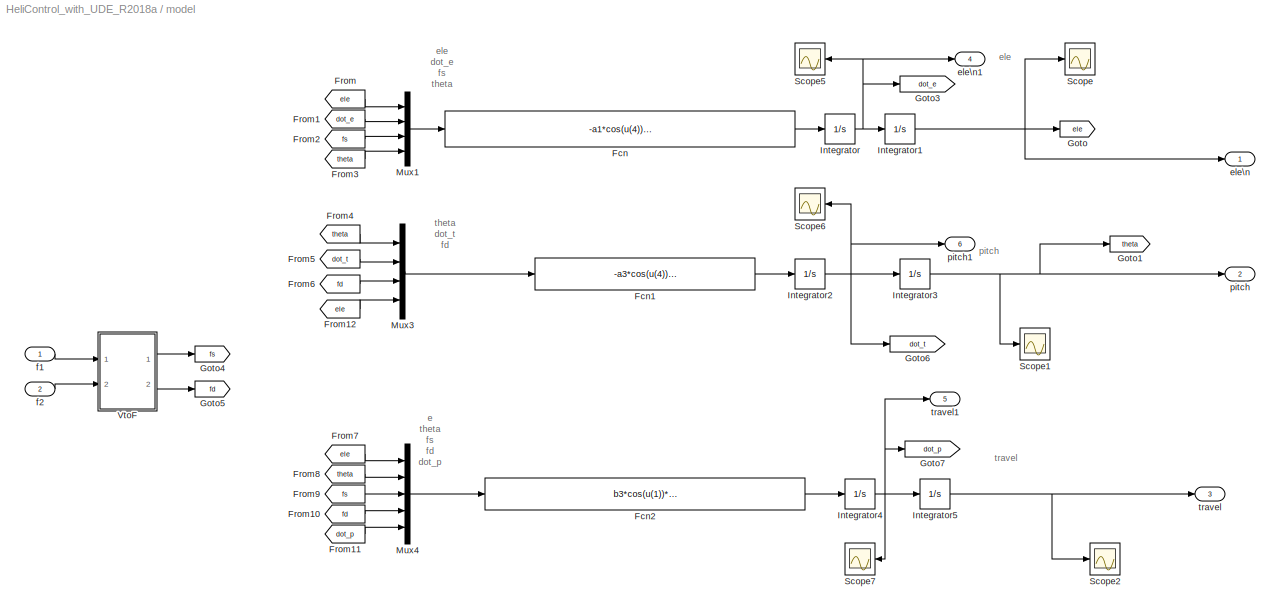
BLOCK [SubSystem] model
  Ports = [2, 6]
  RequestExecContextInheritance = off
  SID = 1893
BLOCK [Fcn] model/Fcn
  Expr = -a1*cos(u(4))*sin(u(1)) - a2*cos(u(1)) + b1*cos(u(4))*u(3) - ce*u(2)
  SID = 1897
BLOCK [Fcn] model/Fcn1
  Expr = -a3*cos(u(4))*sin(u(1)) + b2*u(3) - ct*u(2)
  SID = 1898
BLOCK [Fcn] model/Fcn2
  Expr = b3*cos(u(1))*sin(u(2))*u(3) - b4*sin(u(2))*sin(u(1))*u(4) - cp*u(5)
  SID = 1899
BLOCK [From] model/From
  GotoTag = ele
  SID = 1900
BLOCK [From] model/From1
  GotoTag = dot_e
  SID = 1901
BLOCK [From] model/From10
  GotoTag = fd
  SID = 1902
BLOCK [From] model/From11
  GotoTag = dot_p
  SID = 1903
BLOCK [From] model/From12
  GotoTag = ele
  SID = 1904
BLOCK [From] model/From2
  GotoTag = fs
  SID = 1905
BLOCK [From] model/From3
  GotoTag = theta
  SID = 1906
BLOCK [From] model/From4
  GotoTag = theta
  SID = 1907
BLOCK [From] model/From5
  GotoTag = dot_t
  SID = 1908
BLOCK [From] model/From6
  GotoTag = fd
  SID = 1909
BLOCK [From] model/From7
  GotoTag = ele
  SID = 1910
BLOCK [From] model/From8
  GotoTag = theta
  SID = 1911
BLOCK [From] model/From9
  GotoTag = fs
  SID = 1912
BLOCK [Goto] model/Goto
  GotoTag = ele
  SID = 1913
BLOCK [Goto] model/Goto1
  GotoTag = theta
  SID = 1914
BLOCK [Goto] model/Goto3
  GotoTag = dot_e
  SID = 1916
BLOCK [Goto] model/Goto4
  GotoTag = fs
  SID = 1917
BLOCK [Goto] model/Goto5
  GotoTag = fd
  SID = 1918
BLOCK [Goto] model/Goto6
  GotoTag = dot_t
  SID = 1919
BLOCK [Goto] model/Goto7
  GotoTag = dot_p
  SID = 1920
BLOCK [Integrator] model/Integrator
  Ports = [1, 1]
  SID = 1921
BLOCK [Integrator] model/Integrator1
  InitialCondition = -0.713
  Ports = [1, 1]
  SID = 1922
BLOCK [Integrator] model/Integrator2
  Ports = [1, 1]
  SID = 1923
BLOCK [Integrator] model/Integrator3
  Ports = [1, 1]
  SID = 1924
BLOCK [Integrator] model/Integrator4
  Ports = [1, 1]
  SID = 1925
BLOCK [Integrator] model/Integrator5
  Ports = [1, 1]
  SID = 1926
BLOCK [Mux] model/Mux1
  DisplayOption = bar
  Ports = [4, 1]
  SID = 1928
BLOCK [Mux] model/Mux3
  DisplayOption = bar
  Ports = [4, 1]
  SID = 1930
BLOCK [Mux] model/Mux4
  DisplayOption = bar
  Inputs = 5
  Ports = [5, 1]
  SID = 1931
BLOCK [Scope] model/Scope
  Floating = off
  NumInputPorts = 1
  Ports = [1]
  SID = 1932
  ScopeSpecificationString = Simulink.scopes.TimeScopeBlockCfg('CurrentConfiguration', extmgr.ConfigurationSet(extmgr.Configuration('Core','General UI',true),extmgr.Configuration('Core','Source UI',true),extmgr.Configuration('Sources','WiredSimulink',true,'DataLoggingVariableName','ScopeData24','DataLoggingSaveFormat','StructureWithTime','DataLoggingDecimation','1','DataLoggingDecimateData',true),extmgr.Configuration('Visuals...<+877ch>
BLOCK [Scope] model/Scope1
  Floating = off
  NumInputPorts = 1
  Ports = [1]
  SID = 1933
  ScopeSpecificationString = Simulink.scopes.TimeScopeBlockCfg('CurrentConfiguration', extmgr.ConfigurationSet(extmgr.Configuration('Core','General UI',true),extmgr.Configuration('Core','Source UI',true),extmgr.Configuration('Sources','WiredSimulink',true,'DataLoggingVariableName','ScopeData25','DataLoggingSaveFormat','StructureWithTime','DataLoggingDecimation','1','DataLoggingDecimateData',true),extmgr.Configuration('Visuals...<+877ch>
BLOCK [Scope] model/Scope2
  Floating = off
  NumInputPorts = 1
  Ports = [1]
  SID = 1934
  ScopeSpecificationString = Simulink.scopes.TimeScopeBlockCfg('CurrentConfiguration', extmgr.ConfigurationSet(extmgr.Configuration('Core','General UI',true),extmgr.Configuration('Core','Source UI',true),extmgr.Configuration('Sources','WiredSimulink',true,'DataLoggingVariableName','ScopeData26','DataLoggingSaveFormat','StructureWithTime','DataLoggingDecimation','1','DataLoggingDecimateData',true),extmgr.Configuration('Visuals...<+877ch>
BLOCK [Scope] model/Scope5
  Floating = off
  NumInputPorts = 1
  Ports = [1]
  SID = 1937
  ScopeSpecificationString = Simulink.scopes.TimeScopeBlockCfg('CurrentConfiguration', extmgr.ConfigurationSet(extmgr.Configuration('Core','General UI',true),extmgr.Configuration('Core','Source UI',true),extmgr.Configuration('Sources','WiredSimulink',true,'DataLoggingVariableName','ScopeData7','DataLoggingSaveFormat','StructureWithTime','DataLoggingDecimation','1','DataLoggingDecimateData',true),extmgr.Configuration('Visuals'...<+876ch>
BLOCK [Scope] model/Scope6
  Floating = off
  NumInputPorts = 1
  Ports = [1]
  SID = 1938
  ScopeSpecificationString = Simulink.scopes.TimeScopeBlockCfg('CurrentConfiguration', extmgr.ConfigurationSet(extmgr.Configuration('Core','General UI',true),extmgr.Configuration('Core','Source UI',true),extmgr.Configuration('Sources','WiredSimulink',true,'DataLoggingVariableName','ScopeData8','DataLoggingSaveFormat','StructureWithTime','DataLoggingDecimation','1','DataLoggingDecimateData',true),extmgr.Configuration('Visuals'...<+876ch>
BLOCK [Scope] model/Scope7
  Floating = off
  NumInputPorts = 1
  Ports = [1]
  SID = 1939
  ScopeSpecificationString = Simulink.scopes.TimeScopeBlockCfg('CurrentConfiguration', extmgr.ConfigurationSet(extmgr.Configuration('Core','General UI',true),extmgr.Configuration('Core','Source UI',true),extmgr.Configuration('Sources','WiredSimulink',true,'DataLoggingVariableName','ScopeData9','DataLoggingSaveFormat','StructureWithTime','DataLoggingDecimation','1','DataLoggingDecimateData',true),extmgr.Configuration('Visuals'...<+1652ch>
BLOCK [SubSystem] model/VtoF
  Ports = [2, 2]
  RequestExecContextInheritance = off
  SID = 1943
BLOCK [Sum] model/VtoF/Add
  IconShape = rectangular
  Ports = [2, 1]
  SID = 1946
BLOCK [Sum] model/VtoF/Add1
  IconShape = rectangular
  Inputs = +-
  Ports = [2, 1]
  SID = 1947
BLOCK [Outport] model/VtoF/Fd
  Port = 2
  SID = 1949
  VectorParamsAs1DForOutWhenUnconnected = off
BLOCK [Outport] model/VtoF/Fs
  SID = 1948
  VectorParamsAs1DForOutWhenUnconnected = off
BLOCK [Inport] model/VtoF/f1
  SID = 1944
BLOCK [Inport] model/VtoF/f2
  Port = 2
  SID = 1945
BLOCK [Outport] model/ele\n
  SID = 1952
  VectorParamsAs1DForOutWhenUnconnected = off
BLOCK [Outport] model/ele\n1
  Port = 4
  SID = 2032
  VectorParamsAs1DForOutWhenUnconnected = off
BLOCK [Inport] model/f1
  SID = 1894
BLOCK [Inport] model/f2
  Port = 2
  SID = 1895
BLOCK [Outport] model/pitch
  Port = 2
  SID = 2026
  VectorParamsAs1DForOutWhenUnconnected = off
BLOCK [Outport] model/pitch1
  Port = 6
  SID = 2049
  VectorParamsAs1DForOutWhenUnconnected = off
BLOCK [Outport] model/travel
  Port = 3
  SID = 2027
  VectorParamsAs1DForOutWhenUnconnected = off
BLOCK [Outport] model/travel1
  Port = 5
  SID = 2048
  VectorParamsAs1DForOutWhenUnconnected = off
BLOCK [Scope] scope9
  Floating = off
  NumInputPorts = 1
  Ports = [1]
  SID = 1463
  ScopeSpecificationString = Simulink.scopes.TimeScopeBlockCfg('CurrentConfiguration', extmgr.ConfigurationSet(extmgr.Configuration('Core','General UI',true),extmgr.Configuration('Core','Source UI',true),extmgr.Configuration('Sources','WiredSimulink',true,'DataLoggingVariableName','f21','DataLoggingSaveFormat','Array','DataLoggingDecimation','1','DataLoggingDecimateData',true),extmgr.Configuration('Visuals','Time Domain',true...<+1720ch>
ANNOTATION control/Controller_epsilon: Elevation
ANNOTATION control/Controller_epsilon/Controller_epsilon1: �Ƕ����
ANNOTATION control/Controller_epsilon/Controller_epsilon1: ���ٶ����
ANNOTATION control/Controller_psi: Travel
ANNOTATION control/Controller_psi/Controller_travel: �Ƕ����
ANNOTATION control/Controller_psi/Controller_travel: ���ٶ����
ANNOTATION control/Controller_theta: Travel
ANNOTATION control/Controller_theta: �����ﱣ��/ɾ����ͨ�˲�������һ�´�С����UDE�µĲ�����\n一锟阶碉拷通锟斤拷锟斤拷锟斤拷2\nUDE(С����T=0.1)������10\n一锟阶碉拷通锟斤拷锟剿筹拷锟斤拷UDE��2~10���ֵĹ����ź�
ANNOTATION control/Controller_theta/Controller_travel: �Ƕ����
ANNOTATION control/Controller_theta/Controller_travel: ���ٶ����
ANNOTATION model: e\ntheta\nfs\nfd\ndot_p
ANNOTATION model: ele
ANNOTATION model: ele\ndot_e\nfs\ntheta
ANNOTATION model: pitch
ANNOTATION model: theta\ndot_t\nfd
ANNOTATION model: travel
LINE From10:1 -> control:2
LINE From8:1 -> control:1
LINE From9:1 -> control:3
LINE Mux1:1 -> Scope3:1
LINE Mux:1 -> scope9:1
LINE control/Clock1:1 -> control/calcu_fd:8
LINE control/Clock:1 -> control/fs__theta_d:5
LINE control/Constant10:1 -> control/calcu_fd:7
LINE control/Constant1:1 -> control/calcu_v1:6
LINE control/Constant2:1 -> control/calcu_v2:4
LINE control/Constant3:1 -> control/calcu_v1:7
LINE control/Constant4:1 -> control/calcu_v1:8
LINE control/Constant5:1 -> control/calcu_v2:3
LINE control/Constant8:1 -> control/calcu_fd:5
LINE control/Constant9:1 -> control/calcu_fd:6
LINE control/Constant:1 -> control/calcu_v1:5
NET control/Controller_epsilon/Add:1 -> control/Controller_epsilon/U_ele:1, control/Controller_epsilon/scope14:1
LINE control/Controller_epsilon/Classcial UDE/Add2:1 -> control/Controller_epsilon/Classcial UDE/Product:1
LINE control/Controller_epsilon/Classcial UDE/Integrator1:1 -> control/Controller_epsilon/Classcial UDE/Add2:2
LINE control/Controller_epsilon/Classcial UDE/Product:1 -> control/Controller_epsilon/Classcial UDE/d:1
LINE control/Controller_epsilon/Classcial UDE/T:1 -> control/Controller_epsilon/Classcial UDE/Product:2
LINE control/Controller_epsilon/Classcial UDE/dot_x:1 -> control/Controller_epsilon/Classcial UDE/Add2:1
LINE control/Controller_epsilon/Classcial UDE/u0:1 -> control/Controller_epsilon/Classcial UDE/Integrator1:1
NET control/Controller_epsilon/Classcial UDE:1 -> control/Controller_epsilon/Goto:1, control/Controller_epsilon/To Workspace1:1, control/Controller_epsilon/scope1:1
LINE control/Controller_epsilon/Constant:1 -> control/Controller_epsilon/Classcial UDE:3
LINE control/Controller_epsilon/Controller_epsilon1/Constant1:1 -> control/Controller_epsilon/Controller_epsilon1/Manual Switch:2
LINE control/Controller_epsilon/Controller_epsilon1/Integrator:1 -> control/Controller_epsilon/Controller_epsilon1/Mux:1
LINE control/Controller_epsilon/Controller_epsilon1/Manual Switch:1 -> control/Controller_epsilon/Controller_epsilon1/Sum1:2
LINE control/Controller_epsilon/Controller_epsilon1/Mux:1 -> control/Controller_epsilon/Controller_epsilon1/k_double_epsilon:1
NET control/Controller_epsilon/Controller_epsilon1/Sum1:1 -> control/Controller_epsilon/Controller_epsilon1/scope1:1, control/Controller_epsilon/Controller_epsilon1/u_ele:1
NET control/Controller_epsilon/Controller_epsilon1/Sum3:1 -> control/Controller_epsilon/Controller_epsilon1/Integrator:1, control/Controller_epsilon/Controller_epsilon1/Mux:2, control/Controller_epsilon/Controller_epsilon1/scope4:1
NET control/Controller_epsilon/Controller_epsilon1/Sum4:1 -> control/Controller_epsilon/Controller_epsilon1/Sum1:1, control/Controller_epsilon/Controller_epsilon1/scope6:1, control/Controller_epsilon/Controller_epsilon1/u0_ele:1
NET control/Controller_epsilon/Controller_epsilon1/Sum6:1 -> control/Controller_epsilon/Controller_epsilon1/Mux:3, control/Controller_epsilon/Controller_epsilon1/scope4:2
LINE control/Controller_epsilon/Controller_epsilon1/d_hat_epsilon:1 -> control/Controller_epsilon/Controller_epsilon1/Manual Switch:1
NET control/Controller_epsilon/Controller_epsilon1/ddot_epsilon_d:1 -> control/Controller_epsilon/Controller_epsilon1/Sum4:2, control/Controller_epsilon/Controller_epsilon1/scope4:3
NET control/Controller_epsilon/Controller_epsilon1/dot_epsilon:1 -> control/Controller_epsilon/Controller_epsilon1/Sum6:2, control/Controller_epsilon/Controller_epsilon1/scope3:1
LINE control/Controller_epsilon/Controller_epsilon1/dot_epsilon_d:1 -> control/Controller_epsilon/Controller_epsilon1/Sum6:1
NET control/Controller_epsilon/Controller_epsilon1/epsilon:1 -> control/Controller_epsilon/Controller_epsilon1/Sum3:2, control/Controller_epsilon/Controller_epsilon1/scope8:1
NET control/Controller_epsilon/Controller_epsilon1/epsilon_d:1 -> control/Controller_epsilon/Controller_epsilon1/Sum3:1, control/Controller_epsilon/Controller_epsilon1/scope9:1
LINE control/Controller_epsilon/Controller_epsilon1/k_double_epsilon:1 -> control/Controller_epsilon/Controller_epsilon1/Sum4:1
LINE control/Controller_epsilon/Controller_epsilon1:1 -> control/Controller_epsilon/Add:1
LINE control/Controller_epsilon/Controller_epsilon1:2 -> control/Controller_epsilon/Goto5:1
LINE control/Controller_epsilon/From1:1 -> control/Controller_epsilon/Controller_epsilon1:5
NET control/Controller_epsilon/From23:1 -> control/Controller_epsilon/Controller_epsilon1:4, control/Controller_epsilon/Mux5:2
LINE control/Controller_epsilon/From24:1 -> control/Controller_epsilon/Sum2:2
LINE control/Controller_epsilon/From2:1 -> control/Controller_epsilon/Classcial UDE:2
LINE control/Controller_epsilon/From31:1 -> control/Controller_epsilon/Controller_epsilon1:6
LINE control/Controller_epsilon/From6:1 -> control/Controller_epsilon/Sum2:1
LINE control/Controller_epsilon/From:1 -> control/Controller_epsilon/Classcial UDE:1
LINE control/Controller_epsilon/Integrator3:1 -> control/Controller_epsilon/Goto1:1
NET control/Controller_epsilon/Manual Switch:1 -> control/Controller_epsilon/Goto18:1, control/Controller_epsilon/dot_epsilon:1
NET control/Controller_epsilon/Mux5:1 -> control/Controller_epsilon/radtodeg2:1, control/Controller_epsilon/scope12:1
NET control/Controller_epsilon/Sine Wave:1 -> control/Controller_epsilon/Add:2, control/Controller_epsilon/scope1:2
NET control/Controller_epsilon/Sum2:1 -> control/Controller_epsilon/Integrator3:1, control/Controller_epsilon/To Workspace:1
LINE control/Controller_epsilon/Transfer Fcn:1 -> control/Controller_epsilon/Manual Switch:1
LINE control/Controller_epsilon/epsilon1:1 -> control/Controller_epsilon/Manual Switch:2
NET control/Controller_epsilon/epsilon:1 -> control/Controller_epsilon/Goto4:1, control/Controller_epsilon/Transfer Fcn:1
LINE control/Controller_epsilon/goal_ele/Constant4:1 -> control/Controller_epsilon/goal_ele/Quintic polynomial interpolation:1
LINE control/Controller_epsilon/goal_ele/Constant5:1 -> control/Controller_epsilon/goal_ele/Quintic polynomial interpolation:2
LINE control/Controller_epsilon/goal_ele/Constant7:1 -> control/Controller_epsilon/goal_ele/Quintic polynomial interpolation:3
LINE control/Controller_epsilon/goal_ele/Constant8:1 -> control/Controller_epsilon/goal_ele/Quintic polynomial interpolation:4
NET control/Controller_epsilon/goal_ele/Derivative1:1 -> control/Controller_epsilon/goal_ele/Scope2:1, control/Controller_epsilon/goal_ele/x1d_ddot:1
NET control/Controller_epsilon/goal_ele/Derivative:1 -> control/Controller_epsilon/goal_ele/Derivative1:1, control/Controller_epsilon/goal_ele/Scope1:1, control/Controller_epsilon/goal_ele/x1d_dot:1
LINE control/Controller_epsilon/goal_ele/Quintic polynomial interpolation/Add1:1 -> control/Controller_epsilon/goal_ele/Quintic polynomial interpolation/ddot_err:1
LINE control/Controller_epsilon/goal_ele/Quintic polynomial interpolation/Add:1 -> control/Controller_epsilon/goal_ele/Quintic polynomial interpolation/dot_err:1
LINE control/Controller_epsilon/goal_ele/Quintic polynomial interpolation/Clock:1 -> control/Controller_epsilon/goal_ele/Quintic polynomial interpolation/MATLAB Function:1
NET control/Controller_epsilon/goal_ele/Quintic polynomial interpolation/Derivative1:1 -> control/Controller_epsilon/goal_ele/Quintic polynomial interpolation/Add1:1, control/Controller_epsilon/goal_ele/Quintic polynomial interpolation/dot_err2:1
NET control/Controller_epsilon/goal_ele/Quintic polynomial interpolation/Derivative:1 -> control/Controller_epsilon/goal_ele/Quintic polynomial interpolation/Add:1, control/Controller_epsilon/goal_ele/Quintic polynomial interpolation/Derivative1:1, control/Controller_epsilon/goal_ele/Quintic polynomial interpolation/dot_err1:1
LINE control/Controller_epsilon/goal_ele/Quintic polynomial interpolation/MATLAB Function/ Demux :1 -> control/Controller_epsilon/goal_ele/Quintic polynomial interpolation/MATLAB Function/ Terminator :1
LINE control/Controller_epsilon/goal_ele/Quintic polynomial interpolation/MATLAB Function/ SFunction :1 -> control/Controller_epsilon/goal_ele/Quintic polynomial interpolation/MATLAB Function/ Demux :1
LINE control/Controller_epsilon/goal_ele/Quintic polynomial interpolation/MATLAB Function/ SFunction :2 -> control/Controller_epsilon/goal_ele/Quintic polynomial interpolation/MATLAB Function/y:1
LINE control/Controller_epsilon/goal_ele/Quintic polynomial interpolation/MATLAB Function/ SFunction :3 -> control/Controller_epsilon/goal_ele/Quintic polynomial interpolation/MATLAB Function/dot_y:1
LINE control/Controller_epsilon/goal_ele/Quintic polynomial interpolation/MATLAB Function/ SFunction :4 -> control/Controller_epsilon/goal_ele/Quintic polynomial interpolation/MATLAB Function/ddot_y:1
LINE control/Controller_epsilon/goal_ele/Quintic polynomial interpolation/MATLAB Function/T1:1 -> control/Controller_epsilon/goal_ele/Quintic polynomial interpolation/MATLAB Function/ SFunction :2
LINE control/Controller_epsilon/goal_ele/Quintic polynomial interpolation/MATLAB Function/T2:1 -> control/Controller_epsilon/goal_ele/Quintic polynomial interpolation/MATLAB Function/ SFunction :3
LINE control/Controller_epsilon/goal_ele/Quintic polynomial interpolation/MATLAB Function/t1:1 -> control/Controller_epsilon/goal_ele/Quintic polynomial interpolation/MATLAB Function/ SFunction :4
LINE control/Controller_epsilon/goal_ele/Quintic polynomial interpolation/MATLAB Function/t2:1 -> control/Controller_epsilon/goal_ele/Quintic polynomial interpolation/MATLAB Function/ SFunction :5
LINE control/Controller_epsilon/goal_ele/Quintic polynomial interpolation/MATLAB Function/t:1 -> control/Controller_epsilon/goal_ele/Quintic polynomial interpolation/MATLAB Function/ SFunction :1
NET control/Controller_epsilon/goal_ele/Quintic polynomial interpolation/MATLAB Function:1 -> control/Controller_epsilon/goal_ele/Quintic polynomial interpolation/Derivative:1, control/Controller_epsilon/goal_ele/Quintic polynomial interpolation/Scope:1, control/Controller_epsilon/goal_ele/Quintic polynomial interpolation/py:1
NET control/Controller_epsilon/goal_ele/Quintic polynomial interpolation/MATLAB Function:2 -> control/Controller_epsilon/goal_ele/Quintic polynomial interpolation/Add:2, control/Controller_epsilon/goal_ele/Quintic polynomial interpolation/Scope1:1, control/Controller_epsilon/goal_ele/Quintic polynomial interpolation/vy:1
NET control/Controller_epsilon/goal_ele/Quintic polynomial interpolation/MATLAB Function:3 -> control/Controller_epsilon/goal_ele/Quintic polynomial interpolation/Add1:2, control/Controller_epsilon/goal_ele/Quintic polynomial interpolation/Scope2:1, control/Controller_epsilon/goal_ele/Quintic polynomial interpolation/ay:1
LINE control/Controller_epsilon/goal_ele/Quintic polynomial interpolation/t1:1 -> control/Controller_epsilon/goal_ele/Quintic polynomial interpolation/MATLAB Function:4
LINE control/Controller_epsilon/goal_ele/Quintic polynomial interpolation/t2:1 -> control/Controller_epsilon/goal_ele/Quintic polynomial interpolation/MATLAB Function:5
LINE control/Controller_epsilon/goal_ele/Quintic polynomial interpolation/y0:1 -> control/Controller_epsilon/goal_ele/Quintic polynomial interpolation/MATLAB Function:2
LINE control/Controller_epsilon/goal_ele/Quintic polynomial interpolation/yd:1 -> control/Controller_epsilon/goal_ele/Quintic polynomial interpolation/MATLAB Function:3
NET control/Controller_epsilon/goal_ele/Sine Wave:1 -> control/Controller_epsilon/goal_ele/Derivative:1, control/Controller_epsilon/goal_ele/Scope:1, control/Controller_epsilon/goal_ele/To Workspace:1, control/Controller_epsilon/goal_ele/x1d:1
NET control/Controller_epsilon/goal_ele:1 -> control/Controller_epsilon/Controller_epsilon1:1, control/Controller_epsilon/Goto2:1, control/Controller_epsilon/Mux5:1
NET control/Controller_epsilon/goal_ele:2 -> control/Controller_epsilon/Controller_epsilon1:2, control/Controller_epsilon/Goto3:1
LINE control/Controller_epsilon/goal_ele:3 -> control/Controller_epsilon/Controller_epsilon1:3
LINE control/Controller_epsilon/radtodeg2:1 -> control/Controller_epsilon/scope9:1
NET control/Controller_epsilon:1 -> control/Goto1:1, control/To Workspace:1, control/scope5:1
NET control/Controller_epsilon:2 -> control/Goto2:1, control/scope5:2
NET control/Controller_psi/Add:1 -> control/Controller_psi/U_psi:1, control/Controller_psi/scope14:1
LINE control/Controller_psi/Classcial UDE/Add2:1 -> control/Controller_psi/Classcial UDE/Product:1
LINE control/Controller_psi/Classcial UDE/Integrator1:1 -> control/Controller_psi/Classcial UDE/Add2:2
LINE control/Controller_psi/Classcial UDE/Product:1 -> control/Controller_psi/Classcial UDE/d:1
LINE control/Controller_psi/Classcial UDE/T:1 -> control/Controller_psi/Classcial UDE/Product:2
LINE control/Controller_psi/Classcial UDE/dot_x:1 -> control/Controller_psi/Classcial UDE/Add2:1
LINE control/Controller_psi/Classcial UDE/u0:1 -> control/Controller_psi/Classcial UDE/Integrator1:1
NET control/Controller_psi/Classcial UDE:1 -> control/Controller_psi/Goto:1, control/Controller_psi/To Workspace1:1
LINE control/Controller_psi/Constant:1 -> control/Controller_psi/Classcial UDE:3
LINE control/Controller_psi/Controller_travel/Constant1:1 -> control/Controller_psi/Controller_travel/Manual Switch:1
LINE control/Controller_psi/Controller_travel/Integrator:1 -> control/Controller_psi/Controller_travel/Mux:1
LINE control/Controller_psi/Controller_travel/Manual Switch:1 -> control/Controller_psi/Controller_travel/Sum1:2
LINE control/Controller_psi/Controller_travel/Mux:1 -> control/Controller_psi/Controller_travel/k_double_psi:1
NET control/Controller_psi/Controller_travel/Sum1:1 -> control/Controller_psi/Controller_travel/scope1:1, control/Controller_psi/Controller_travel/u_psi:1
NET control/Controller_psi/Controller_travel/Sum3:1 -> control/Controller_psi/Controller_travel/Integrator:1, control/Controller_psi/Controller_travel/Mux:2, control/Controller_psi/Controller_travel/scope4:1
NET control/Controller_psi/Controller_travel/Sum4:1 -> control/Controller_psi/Controller_travel/Sum1:1, control/Controller_psi/Controller_travel/scope6:1, control/Controller_psi/Controller_travel/u0_psi:1
NET control/Controller_psi/Controller_travel/Sum6:1 -> control/Controller_psi/Controller_travel/Mux:3, control/Controller_psi/Controller_travel/scope4:2
LINE control/Controller_psi/Controller_travel/d_hat_psi:1 -> control/Controller_psi/Controller_travel/Manual Switch:2
NET control/Controller_psi/Controller_travel/ddot_psi_d:1 -> control/Controller_psi/Controller_travel/Sum4:2, control/Controller_psi/Controller_travel/scope4:3
NET control/Controller_psi/Controller_travel/dot_psi:1 -> control/Controller_psi/Controller_travel/Sum6:2, control/Controller_psi/Controller_travel/scope3:1
LINE control/Controller_psi/Controller_travel/dot_psi_d:1 -> control/Controller_psi/Controller_travel/Sum6:1
LINE control/Controller_psi/Controller_travel/k_double_psi:1 -> control/Controller_psi/Controller_travel/Sum4:1
NET control/Controller_psi/Controller_travel/psi:1 -> control/Controller_psi/Controller_travel/Sum3:2, control/Controller_psi/Controller_travel/scope8:1
NET control/Controller_psi/Controller_travel/psi_d:1 -> control/Controller_psi/Controller_travel/Sum3:1, control/Controller_psi/Controller_travel/scope9:1
LINE control/Controller_psi/Controller_travel:1 -> control/Controller_psi/Add:2
LINE control/Controller_psi/Controller_travel:2 -> control/Controller_psi/Goto5:1
LINE control/Controller_psi/From1:1 -> control/Controller_psi/Controller_travel:5
NET control/Controller_psi/From23:1 -> control/Controller_psi/Controller_travel:4, control/Controller_psi/Mux5:2
LINE control/Controller_psi/From24:1 -> control/Controller_psi/Sum2:2
LINE control/Controller_psi/From2:1 -> control/Controller_psi/Classcial UDE:2
LINE control/Controller_psi/From31:1 -> control/Controller_psi/Controller_travel:6
LINE control/Controller_psi/From6:1 -> control/Controller_psi/Sum2:1
LINE control/Controller_psi/From:1 -> control/Controller_psi/Classcial UDE:1
LINE control/Controller_psi/Integrator3:1 -> control/Controller_psi/Goto1:1
NET control/Controller_psi/Manual Switch:1 -> control/Controller_psi/Goto18:1, control/Controller_psi/dot_psi:1
NET control/Controller_psi/Mux5:1 -> control/Controller_psi/radtodeg2:1, control/Controller_psi/scope12:1
LINE control/Controller_psi/Sine Wave:1 -> control/Controller_psi/Add:1
NET control/Controller_psi/Sum2:1 -> control/Controller_psi/Integrator3:1, control/Controller_psi/To Workspace:1
LINE control/Controller_psi/Transfer Fcn:1 -> control/Controller_psi/Manual Switch:1
LINE control/Controller_psi/generate_curve/Clock:1 -> control/Controller_psi/generate_curve/MATLAB Function:1
LINE control/Controller_psi/generate_curve/Constant1:1 -> control/Controller_psi/generate_curve/ddot_signal:1
LINE control/Controller_psi/generate_curve/MATLAB Function/ Demux :1 -> control/Controller_psi/generate_curve/MATLAB Function/ Terminator :1
LINE control/Controller_psi/generate_curve/MATLAB Function/ SFunction :1 -> control/Controller_psi/generate_curve/MATLAB Function/ Demux :1
LINE control/Controller_psi/generate_curve/MATLAB Function/ SFunction :2 -> control/Controller_psi/generate_curve/MATLAB Function/p:1
LINE control/Controller_psi/generate_curve/MATLAB Function/ SFunction :3 -> control/Controller_psi/generate_curve/MATLAB Function/v:1
LINE control/Controller_psi/generate_curve/MATLAB Function/t:1 -> control/Controller_psi/generate_curve/MATLAB Function/ SFunction :1
NET control/Controller_psi/generate_curve/MATLAB Function:1 -> control/Controller_psi/generate_curve/To Workspace:1, control/Controller_psi/generate_curve/signal:1
LINE control/Controller_psi/generate_curve/MATLAB Function:2 -> control/Controller_psi/generate_curve/dot_signal:1
NET control/Controller_psi/generate_curve:1 -> control/Controller_psi/Controller_travel:1, control/Controller_psi/Goto2:1, control/Controller_psi/Mux5:1
NET control/Controller_psi/generate_curve:2 -> control/Controller_psi/Controller_travel:2, control/Controller_psi/Goto3:1
LINE control/Controller_psi/generate_curve:3 -> control/Controller_psi/Controller_travel:3
LINE control/Controller_psi/psi1:1 -> control/Controller_psi/Manual Switch:2
NET control/Controller_psi/psi:1 -> control/Controller_psi/Goto4:1, control/Controller_psi/Transfer Fcn:1
LINE control/Controller_psi/radtodeg2:1 -> control/Controller_psi/scope9:1
NET control/Controller_psi:1 -> control/Goto3:1, control/To Workspace1:1, control/scope8:1
NET control/Controller_psi:2 -> control/Goto13:1, control/scope8:2
NET control/Controller_theta/1st-Order  Filter1:1 -> control/Controller_theta/Sum1:2, control/Controller_theta/To Workspace1:1, control/Controller_theta/goal_pitch:1
NET control/Controller_theta/Add:1 -> control/Controller_theta/U_theta:1, control/Controller_theta/scope14:1
LINE control/Controller_theta/Classcial UDE/Add2:1 -> control/Controller_theta/Classcial UDE/Product:1
LINE control/Controller_theta/Classcial UDE/Integrator1:1 -> control/Controller_theta/Classcial UDE/Add2:2
LINE control/Controller_theta/Classcial UDE/Product:1 -> control/Controller_theta/Classcial UDE/d:1
LINE control/Controller_theta/Classcial UDE/T:1 -> control/Controller_theta/Classcial UDE/Product:2
LINE control/Controller_theta/Classcial UDE/dot_x:1 -> control/Controller_theta/Classcial UDE/Add2:1
LINE control/Controller_theta/Classcial UDE/u0:1 -> control/Controller_theta/Classcial UDE/Integrator1:1
NET control/Controller_theta/Classcial UDE:1 -> control/Controller_theta/Goto:1, control/Controller_theta/Scope:1, control/Controller_theta/To Workspace2:1
LINE control/Controller_theta/Constant:1 -> control/Controller_theta/Classcial UDE:3
LINE control/Controller_theta/Controller_travel/Constant1:1 -> control/Controller_theta/Controller_travel/Manual Switch:1
LINE control/Controller_theta/Controller_travel/Integrator:1 -> control/Controller_theta/Controller_travel/Mux:1
LINE control/Controller_theta/Controller_travel/Manual Switch:1 -> control/Controller_theta/Controller_travel/Sum1:2
LINE control/Controller_theta/Controller_travel/Mux:1 -> control/Controller_theta/Controller_travel/k_double_theta:1
NET control/Controller_theta/Controller_travel/Sum1:1 -> control/Controller_theta/Controller_travel/scope1:1, control/Controller_theta/Controller_travel/u_theta:1
NET control/Controller_theta/Controller_travel/Sum3:1 -> control/Controller_theta/Controller_travel/Integrator:1, control/Controller_theta/Controller_travel/Mux:2, control/Controller_theta/Controller_travel/scope4:1
NET control/Controller_theta/Controller_travel/Sum4:1 -> control/Controller_theta/Controller_travel/Sum1:1, control/Controller_theta/Controller_travel/scope6:1, control/Controller_theta/Controller_travel/u0_theta:1
NET control/Controller_theta/Controller_travel/Sum6:1 -> control/Controller_theta/Controller_travel/Mux:3, control/Controller_theta/Controller_travel/scope4:2
LINE control/Controller_theta/Controller_travel/d_hat_theta:1 -> control/Controller_theta/Controller_travel/Manual Switch:2
NET control/Controller_theta/Controller_travel/ddot_theta_d:1 -> control/Controller_theta/Controller_travel/Sum4:2, control/Controller_theta/Controller_travel/scope4:3
NET control/Controller_theta/Controller_travel/dot_theta:1 -> control/Controller_theta/Controller_travel/Sum6:2, control/Controller_theta/Controller_travel/scope3:1
LINE control/Controller_theta/Controller_travel/dot_theta_d:1 -> control/Controller_theta/Controller_travel/Sum6:1
LINE control/Controller_theta/Controller_travel/k_double_theta:1 -> control/Controller_theta/Controller_travel/Sum4:1
NET control/Controller_theta/Controller_travel/theta:1 -> control/Controller_theta/Controller_travel/Sum3:2, control/Controller_theta/Controller_travel/scope8:1
NET control/Controller_theta/Controller_travel/theta_d:1 -> control/Controller_theta/Controller_travel/Sum3:1, control/Controller_theta/Controller_travel/scope9:1
LINE control/Controller_theta/Controller_travel:1 -> control/Controller_theta/Add:2
LINE control/Controller_theta/Controller_travel:2 -> control/Controller_theta/Goto5:1
LINE control/Controller_theta/From1:1 -> control/Controller_theta/Controller_travel:5
NET control/Controller_theta/From23:1 -> control/Controller_theta/Controller_travel:4, control/Controller_theta/Mux5:2
LINE control/Controller_theta/From24:1 -> control/Controller_theta/Sum2:2
LINE control/Controller_theta/From2:1 -> control/Controller_theta/Classcial UDE:1
LINE control/Controller_theta/From31:1 -> control/Controller_theta/Controller_travel:6
NET control/Controller_theta/From6:1 -> control/Controller_theta/Sum1:1, control/Controller_theta/Sum2:1
LINE control/Controller_theta/From:1 -> control/Controller_theta/Classcial UDE:2
LINE control/Controller_theta/Integrator3:1 -> control/Controller_theta/Goto1:1
NET control/Controller_theta/Manual Switch:1 -> control/Controller_theta/Goto18:1, control/Controller_theta/dot_theta:1, control/Controller_theta/scope1:1
NET control/Controller_theta/Mux5:1 -> control/Controller_theta/radtodeg2:1, control/Controller_theta/scope12:1
LINE control/Controller_theta/Sine Wave:1 -> control/Controller_theta/Add:1
NET control/Controller_theta/Sum1:1 -> control/Controller_theta/To Workspace:1, control/Controller_theta/scope4:1
LINE control/Controller_theta/Sum2:1 -> control/Controller_theta/Integrator3:1
LINE control/Controller_theta/Transfer Fcn:1 -> control/Controller_theta/Manual Switch:1
NET control/Controller_theta/goal_pitch/Transfer Fcn1:1 -> control/Controller_theta/goal_pitch/Transfer Fcn2:1, control/Controller_theta/goal_pitch/x1d_dot:1
LINE control/Controller_theta/goal_pitch/Transfer Fcn2:1 -> control/Controller_theta/goal_pitch/x1d_ddot:1
NET control/Controller_theta/goal_pitch/xd:1 -> control/Controller_theta/goal_pitch/Transfer Fcn1:1, control/Controller_theta/goal_pitch/scope1:1, control/Controller_theta/goal_pitch/x1d:1
NET control/Controller_theta/goal_pitch:1 -> control/Controller_theta/Controller_travel:1, control/Controller_theta/Goto2:1, control/Controller_theta/Mux5:1
NET control/Controller_theta/goal_pitch:2 -> control/Controller_theta/Controller_travel:2, control/Controller_theta/Goto3:1
LINE control/Controller_theta/goal_pitch:3 -> control/Controller_theta/Controller_travel:3
LINE control/Controller_theta/radtodeg2:1 -> control/Controller_theta/scope9:1
LINE control/Controller_theta/theta1:1 -> control/Controller_theta/Manual Switch:2
NET control/Controller_theta/theta:1 -> control/Controller_theta/Goto4:1, control/Controller_theta/Transfer Fcn:1
LINE control/Controller_theta/theta_d:1 -> control/Controller_theta/1st-Order  Filter1:1
NET control/Controller_theta:1 -> control/Goto12:1, control/To Workspace2:1, control/scope4:1
NET control/Controller_theta:2 -> control/Goto7:1, control/scope4:2
LINE control/From12:1 -> control/calcu_v2:1
LINE control/From14:1 -> control/calcu_v2:2
LINE control/From15:1 -> control/fs__theta_d:1
LINE control/From16:1 -> control/fs__theta_d:2
LINE control/From17:1 -> control/fs__theta_d:3
LINE control/From18:1 -> control/calcu_fd:1
LINE control/From19:1 -> control/calcu_fd:2
NET control/From1:1 -> control/Mux3:2, control/Sum1:2, control/Sum:2
LINE control/From20:1 -> control/calcu_fd:3
LINE control/From21:1 -> control/calcu_fd:4
LINE control/From23:1 -> control/Controller_psi:1
LINE control/From2:1 -> control/calcu_v1:2
LINE control/From3:1 -> control/calcu_v1:1
LINE control/From4:1 -> control/Controller_theta:2
LINE control/From5:1 -> control/fs__theta_d:4
LINE control/From6:1 -> control/Controller_epsilon:1
LINE control/From7:1 -> control/Controller_theta:1
LINE control/From8:1 -> control/calcu_v1:3
LINE control/From9:1 -> control/calcu_v1:4
NET control/From:1 -> control/Mux3:1, control/Sum1:1, control/Sum:1
LINE control/Gain1:1 -> control/f2:1
LINE control/Gain:1 -> control/f1:1
LINE control/Mux3:1 -> control/scope11:1
LINE control/Sum1:1 -> control/Gain1:1
LINE control/Sum:1 -> control/Gain:1
LINE control/calcu_fd/ Demux :1 -> control/calcu_fd/ Terminator :1
LINE control/calcu_fd/ SFunction :1 -> control/calcu_fd/ Demux :1
LINE control/calcu_fd/ SFunction :2 -> control/calcu_fd/fd:1
LINE control/calcu_fd/U_theta:1 -> control/calcu_fd/ SFunction :4
LINE control/calcu_fd/a3:1 -> control/calcu_fd/ SFunction :5
LINE control/calcu_fd/b2:1 -> control/calcu_fd/ SFunction :6
LINE control/calcu_fd/ct:1 -> control/calcu_fd/ SFunction :7
LINE control/calcu_fd/dot_t:1 -> control/calcu_fd/ SFunction :3
LINE control/calcu_fd/ele:1 -> control/calcu_fd/ SFunction :2
LINE control/calcu_fd/t:1 -> control/calcu_fd/ SFunction :8
LINE control/calcu_fd/theta:1 -> control/calcu_fd/ SFunction :1
LINE control/calcu_fd:1 -> control/Goto14:1
LINE control/calcu_v1/ Demux :1 -> control/calcu_v1/ Terminator :1
LINE control/calcu_v1/ SFunction :1 -> control/calcu_v1/ Demux :1
LINE control/calcu_v1/ SFunction :2 -> control/calcu_v1/v1:1
LINE control/calcu_v1/U_ele:1 -> control/calcu_v1/ SFunction :4
LINE control/calcu_v1/a1:1 -> control/calcu_v1/ SFunction :5
LINE control/calcu_v1/a2:1 -> control/calcu_v1/ SFunction :6
LINE control/calcu_v1/b1:1 -> control/calcu_v1/ SFunction :7
LINE control/calcu_v1/ce:1 -> control/calcu_v1/ SFunction :8
LINE control/calcu_v1/dot_e:1 -> control/calcu_v1/ SFunction :3
LINE control/calcu_v1/ele:1 -> control/calcu_v1/ SFunction :2
LINE control/calcu_v1/theta:1 -> control/calcu_v1/ SFunction :1
NET control/calcu_v1:1 -> control/Goto8:1, control/scope1:1
LINE control/calcu_v2/ Demux :1 -> control/calcu_v2/ Terminator :1
LINE control/calcu_v2/ SFunction :1 -> control/calcu_v2/ Demux :1
LINE control/calcu_v2/ SFunction :2 -> control/calcu_v2/v2:1
LINE control/calcu_v2/ SFunction :3 -> control/calcu_v2/H3:1
LINE control/calcu_v2/U_psi:1 -> control/calcu_v2/ SFunction :2
LINE control/calcu_v2/b3:1 -> control/calcu_v2/ SFunction :3
LINE control/calcu_v2/cp:1 -> control/calcu_v2/ SFunction :4
LINE control/calcu_v2/dot_p:1 -> control/calcu_v2/ SFunction :1
NET control/calcu_v2:1 -> control/Goto9:1, control/scope2:1
LINE control/calcu_v2:2 -> control/scope3:1
LINE control/ele1:1 -> control/Controller_epsilon:2
LINE control/ele:1 -> control/Goto4:1
LINE control/fs__theta_d/ Demux :1 -> control/fs__theta_d/ Terminator :1
LINE control/fs__theta_d/ SFunction :1 -> control/fs__theta_d/ Demux :1
LINE control/fs__theta_d/ SFunction :2 -> control/fs__theta_d/fs:1
LINE control/fs__theta_d/ SFunction :3 -> control/fs__theta_d/theta_d:1
LINE control/fs__theta_d/ele:1 -> control/fs__theta_d/ SFunction :3
LINE control/fs__theta_d/t:1 -> control/fs__theta_d/ SFunction :5
LINE control/fs__theta_d/theta:1 -> control/fs__theta_d/ SFunction :4
LINE control/fs__theta_d/v1:1 -> control/fs__theta_d/ SFunction :1
LINE control/fs__theta_d/v2:1 -> control/fs__theta_d/ SFunction :2
LINE control/fs__theta_d:1 -> control/Goto10:1
NET control/fs__theta_d:2 -> control/Goto11:1, control/scope10:1
LINE control/psi1:1 -> control/Controller_psi:2
LINE control/psi:1 -> control/Goto6:1
LINE control/theta1:1 -> control/Controller_theta:3
LINE control/theta:1 -> control/Goto5:1
NET control:1 -> Mux:1, model:1
NET control:2 -> Mux:2, model:2
LINE model/Fcn1:1 -> model/Integrator2:1
LINE model/Fcn2:1 -> model/Integrator4:1
LINE model/Fcn:1 -> model/Integrator:1
LINE model/From10:1 -> model/Mux4:4
LINE model/From11:1 -> model/Mux4:5
LINE model/From12:1 -> model/Mux3:4
LINE model/From1:1 -> model/Mux1:2
LINE model/From2:1 -> model/Mux1:3
LINE model/From3:1 -> model/Mux1:4
LINE model/From4:1 -> model/Mux3:1
LINE model/From5:1 -> model/Mux3:2
LINE model/From6:1 -> model/Mux3:3
LINE model/From7:1 -> model/Mux4:1
LINE model/From8:1 -> model/Mux4:2
LINE model/From9:1 -> model/Mux4:3
LINE model/From:1 -> model/Mux1:1
NET model/Integrator1:1 -> model/Goto:1, model/Scope:1, model/ele\n:1
NET model/Integrator2:1 -> model/Goto6:1, model/Integrator3:1, model/Scope6:1, model/pitch1:1
NET model/Integrator3:1 -> model/Goto1:1, model/Scope1:1, model/pitch:1
NET model/Integrator4:1 -> model/Goto7:1, model/Integrator5:1, model/Scope7:1, model/travel1:1
NET model/Integrator5:1 -> model/Scope2:1, model/travel:1
NET model/Integrator:1 -> model/Goto3:1, model/Integrator1:1, model/Scope5:1, model/ele\n1:1
LINE model/Mux1:1 -> model/Fcn:1
LINE model/Mux3:1 -> model/Fcn1:1
LINE model/Mux4:1 -> model/Fcn2:1
LINE model/VtoF/Add1:1 -> model/VtoF/Fd:1
LINE model/VtoF/Add:1 -> model/VtoF/Fs:1
NET model/VtoF/f1:1 -> model/VtoF/Add1:1, model/VtoF/Add:1
NET model/VtoF/f2:1 -> model/VtoF/Add1:2, model/VtoF/Add:2
LINE model/VtoF:1 -> model/Goto4:1
LINE model/VtoF:2 -> model/Goto5:1
LINE model/f1:1 -> model/VtoF:1
LINE model/f2:1 -> model/VtoF:2
NET model:1 -> Goto7:1, Mux1:1, To Workspace:1
NET model:2 -> Goto9:1, Mux1:2, To Workspace1:1
NET model:3 -> Goto8:1, Mux1:3, To Workspace2:1
LINE model:4 -> control:4
LINE model:5 -> control:5
LINE model:6 -> control:6
note: NET lines group one-source signal fan-out (src -> all destinations, sorted); 1:1 wires keep LINE
CHART control/calcu_v1 states=1 transitions=1
  STATE_LABEL 'eML_blk_kernel()'
CHART control/Controller_psi/generate_curve/MATLAB Function states=1 transitions=1
  STATE_LABEL 'eML_blk_kernel()'
CHART control/calcu_v2 states=1 transitions=1
  STATE_LABEL 'eML_blk_kernel()'
CHART control/fs__theta_d states=1 transitions=1
  STATE_LABEL 'eML_blk_kernel()'
CHART control/calcu_fd states=1 transitions=1
  STATE_LABEL 'eML_blk_kernel()'
CHART control/Controller_epsilon/goal_ele/Quintic polynomial interpolation/MATLAB Function states=1 transitions=1
  STATE_LABEL 'eML_blk_kernel()'
